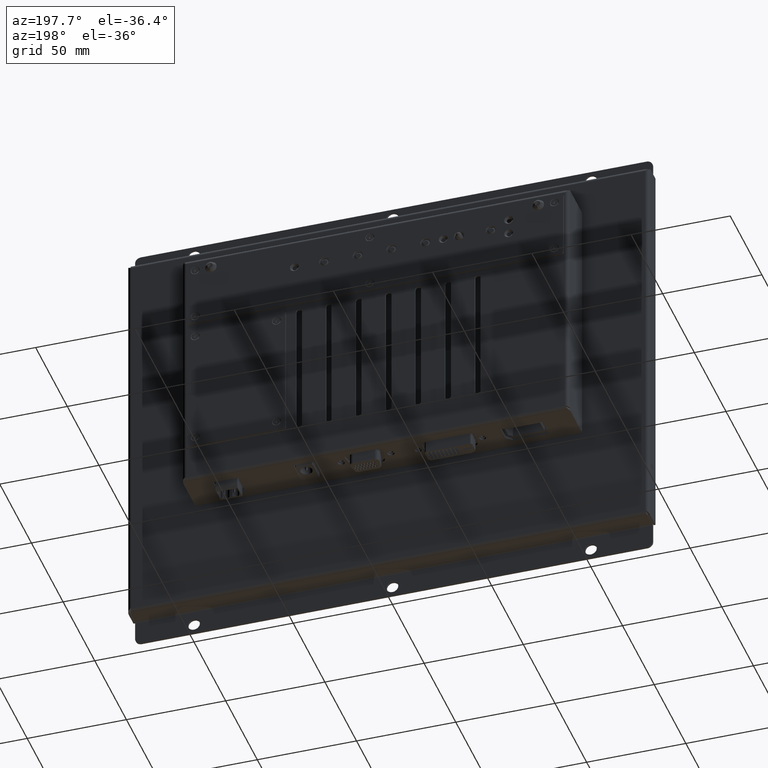
[diagram: clean part render]
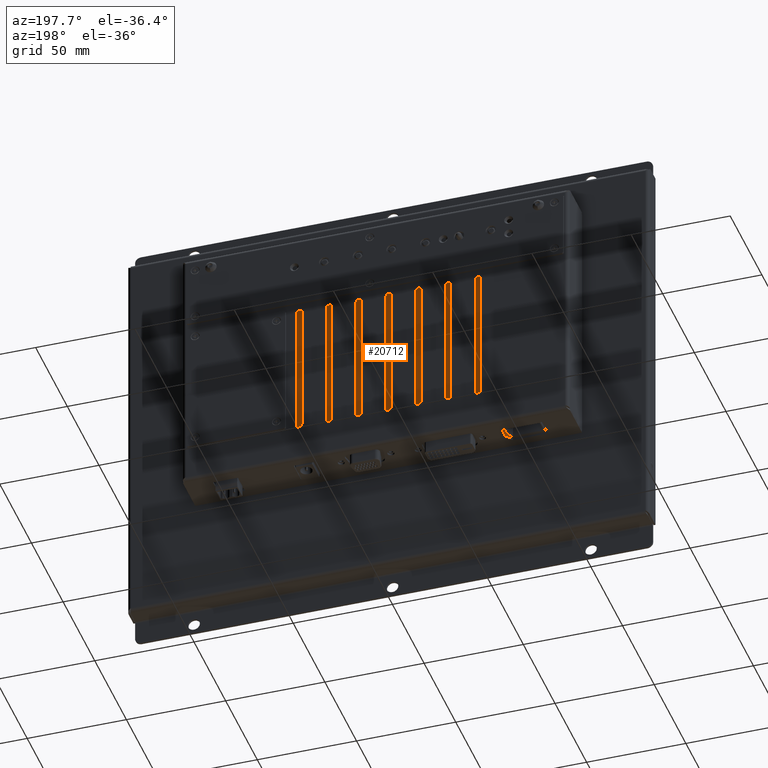
[diagram: same view with one face highlighted and labeled with its STEP entity id]
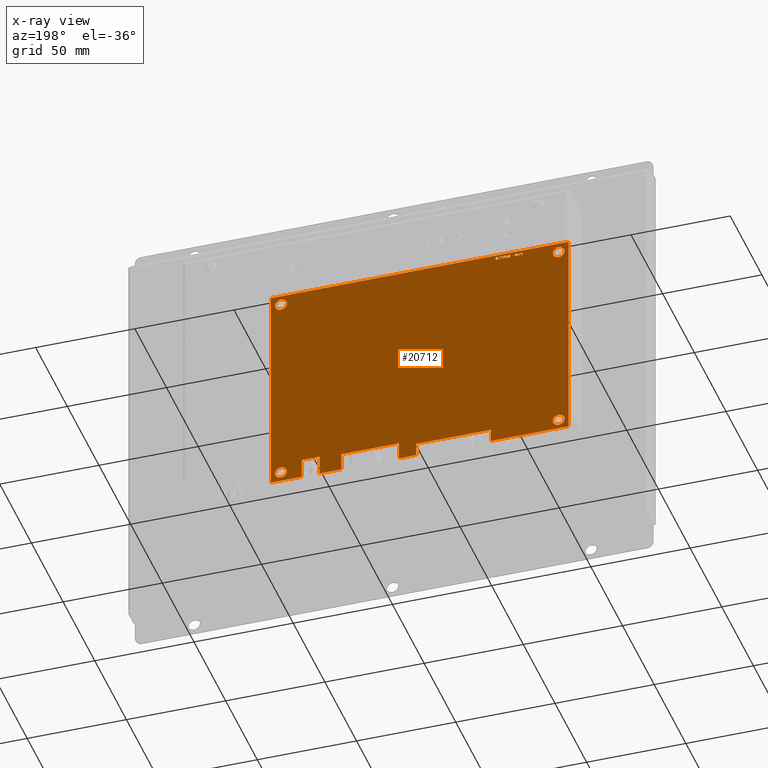
[diagram: x-ray of the same camera — body ghosted, the highlighted face saturated]
A machine part, auxiliary view. The second image highlights one B-rep face of the part: STEP entity #20712.
The next image is the same camera in x-ray: the body ghosted, the highlighted face saturated — about 0% of this face is hidden behind the body in this view.
In plain terms, the highlighted planar face has unit normal (-0, 1, 0).
Its self-contained STEP definition (entity closure, byte-faithful):
#360=B_SPLINE_CURVE_WITH_KNOTS('',2,(#31289,#31290,#31291,#31292),
 .UNSPECIFIED.,.F.,.F.,(3,1,3),(0.,1.,2.),.UNSPECIFIED.);
#361=B_SPLINE_CURVE_WITH_KNOTS('',2,(#31294,#31295,#31296,#31297),
 .UNSPECIFIED.,.F.,.F.,(3,1,3),(0.,1.,2.),.UNSPECIFIED.);
#362=B_SPLINE_CURVE_WITH_KNOTS('',2,(#31299,#31300,#31301,#31302),
 .UNSPECIFIED.,.F.,.F.,(3,1,3),(0.,1.,2.),.UNSPECIFIED.);
#363=B_SPLINE_CURVE_WITH_KNOTS('',2,(#31322,#31323,#31324,#31325),
 .UNSPECIFIED.,.F.,.F.,(3,1,3),(0.,1.,2.),.UNSPECIFIED.);
#364=B_SPLINE_CURVE_WITH_KNOTS('',2,(#31327,#31328,#31329,#31330),
 .UNSPECIFIED.,.F.,.F.,(3,1,3),(0.,1.,2.),.UNSPECIFIED.);
#365=B_SPLINE_CURVE_WITH_KNOTS('',2,(#31332,#31333,#31334,#31335),
 .UNSPECIFIED.,.F.,.F.,(3,1,3),(0.,1.,2.),.UNSPECIFIED.);
#366=B_SPLINE_CURVE_WITH_KNOTS('',2,(#31337,#31338,#31339,#31340),
 .UNSPECIFIED.,.F.,.F.,(3,1,3),(0.,1.,2.),.UNSPECIFIED.);
#367=B_SPLINE_CURVE_WITH_KNOTS('',2,(#31342,#31343,#31344,#31345),
 .UNSPECIFIED.,.F.,.F.,(3,1,3),(0.,1.,2.),.UNSPECIFIED.);
#368=B_SPLINE_CURVE_WITH_KNOTS('',2,(#31347,#31348,#31349,#31350),
 .UNSPECIFIED.,.F.,.F.,(3,1,3),(0.,1.,2.),.UNSPECIFIED.);
#369=B_SPLINE_CURVE_WITH_KNOTS('',2,(#31352,#31353,#31354,#31355),
 .UNSPECIFIED.,.F.,.F.,(3,1,3),(0.,1.,2.),.UNSPECIFIED.);
#370=B_SPLINE_CURVE_WITH_KNOTS('',2,(#31357,#31358,#31359,#31360),
 .UNSPECIFIED.,.F.,.F.,(3,1,3),(0.,1.,2.),.UNSPECIFIED.);
#371=B_SPLINE_CURVE_WITH_KNOTS('',2,(#31362,#31363,#31364,#31365),
 .UNSPECIFIED.,.F.,.F.,(3,1,3),(0.,1.,2.),.UNSPECIFIED.);
#372=B_SPLINE_CURVE_WITH_KNOTS('',2,(#31367,#31368,#31369,#31370),
 .UNSPECIFIED.,.F.,.F.,(3,1,3),(0.,1.,2.),.UNSPECIFIED.);
#373=B_SPLINE_CURVE_WITH_KNOTS('',2,(#31372,#31373,#31374,#31375),
 .UNSPECIFIED.,.F.,.F.,(3,1,3),(0.,1.,2.),.UNSPECIFIED.);
#374=B_SPLINE_CURVE_WITH_KNOTS('',2,(#31377,#31378,#31379,#31380),
 .UNSPECIFIED.,.F.,.F.,(3,1,3),(0.,1.,2.),.UNSPECIFIED.);
#375=B_SPLINE_CURVE_WITH_KNOTS('',2,(#31384,#31385,#31386,#31387),
 .UNSPECIFIED.,.F.,.F.,(3,1,3),(0.,1.,2.),.UNSPECIFIED.);
#376=B_SPLINE_CURVE_WITH_KNOTS('',2,(#31389,#31390,#31391,#31392),
 .UNSPECIFIED.,.F.,.F.,(3,1,3),(0.,1.,2.),.UNSPECIFIED.);
#377=B_SPLINE_CURVE_WITH_KNOTS('',2,(#31394,#31395,#31396,#31397),
 .UNSPECIFIED.,.F.,.F.,(3,1,3),(0.,1.,2.),.UNSPECIFIED.);
#378=B_SPLINE_CURVE_WITH_KNOTS('',2,(#31399,#31400,#31401,#31402),
 .UNSPECIFIED.,.F.,.F.,(3,1,3),(0.,1.,2.),.UNSPECIFIED.);
#379=B_SPLINE_CURVE_WITH_KNOTS('',2,(#31408,#31409,#31410,#31411),
 .UNSPECIFIED.,.F.,.F.,(3,1,3),(0.,1.,2.),.UNSPECIFIED.);
#380=B_SPLINE_CURVE_WITH_KNOTS('',2,(#31413,#31414,#31415,#31416),
 .UNSPECIFIED.,.F.,.F.,(3,1,3),(0.,1.,2.),.UNSPECIFIED.);
#381=B_SPLINE_CURVE_WITH_KNOTS('',2,(#31418,#31419,#31420,#31421),
 .UNSPECIFIED.,.F.,.F.,(3,1,3),(0.,1.,2.),.UNSPECIFIED.);
#382=B_SPLINE_CURVE_WITH_KNOTS('',2,(#31423,#31424,#31425,#31426),
 .UNSPECIFIED.,.F.,.F.,(3,1,3),(0.,1.,2.),.UNSPECIFIED.);
#383=B_SPLINE_CURVE_WITH_KNOTS('',2,(#31428,#31429,#31430,#31431),
 .UNSPECIFIED.,.F.,.F.,(3,1,3),(0.,1.,2.),.UNSPECIFIED.);
#384=B_SPLINE_CURVE_WITH_KNOTS('',2,(#31433,#31434,#31435,#31436),
 .UNSPECIFIED.,.F.,.F.,(3,1,3),(0.,1.,2.),.UNSPECIFIED.);
#385=B_SPLINE_CURVE_WITH_KNOTS('',2,(#31438,#31439,#31440,#31441),
 .UNSPECIFIED.,.F.,.F.,(3,1,3),(0.,1.,2.),.UNSPECIFIED.);
#386=B_SPLINE_CURVE_WITH_KNOTS('',2,(#31443,#31444,#31445,#31446),
 .UNSPECIFIED.,.F.,.F.,(3,1,3),(0.,1.,2.),.UNSPECIFIED.);
#387=B_SPLINE_CURVE_WITH_KNOTS('',2,(#31452,#31453,#31454,#31455),
 .UNSPECIFIED.,.F.,.F.,(3,1,3),(0.,1.,2.),.UNSPECIFIED.);
#388=B_SPLINE_CURVE_WITH_KNOTS('',2,(#31457,#31458,#31459,#31460),
 .UNSPECIFIED.,.F.,.F.,(3,1,3),(0.,1.,2.),.UNSPECIFIED.);
#389=B_SPLINE_CURVE_WITH_KNOTS('',2,(#31462,#31463,#31464,#31465),
 .UNSPECIFIED.,.F.,.F.,(3,1,3),(0.,1.,2.),.UNSPECIFIED.);
#390=B_SPLINE_CURVE_WITH_KNOTS('',2,(#31466,#31467,#31468,#31469),
 .UNSPECIFIED.,.F.,.F.,(3,1,3),(0.,1.,2.),.UNSPECIFIED.);
#391=B_SPLINE_CURVE_WITH_KNOTS('',2,(#31472,#31473,#31474,#31475),
 .UNSPECIFIED.,.F.,.F.,(3,1,3),(0.,1.,2.),.UNSPECIFIED.);
#392=B_SPLINE_CURVE_WITH_KNOTS('',2,(#31477,#31478,#31479,#31480),
 .UNSPECIFIED.,.F.,.F.,(3,1,3),(0.,1.,2.),.UNSPECIFIED.);
#393=B_SPLINE_CURVE_WITH_KNOTS('',2,(#31482,#31483,#31484,#31485),
 .UNSPECIFIED.,.F.,.F.,(3,1,3),(0.,1.,2.),.UNSPECIFIED.);
#394=B_SPLINE_CURVE_WITH_KNOTS('',2,(#31486,#31487,#31488,#31489),
 .UNSPECIFIED.,.F.,.F.,(3,1,3),(0.,1.,2.),.UNSPECIFIED.);
#395=B_SPLINE_CURVE_WITH_KNOTS('',2,(#31492,#31493,#31494,#31495),
 .UNSPECIFIED.,.F.,.F.,(3,1,3),(0.,1.,2.),.UNSPECIFIED.);
#396=B_SPLINE_CURVE_WITH_KNOTS('',2,(#31497,#31498,#31499,#31500),
 .UNSPECIFIED.,.F.,.F.,(3,1,3),(0.,1.,2.),.UNSPECIFIED.);
#397=B_SPLINE_CURVE_WITH_KNOTS('',2,(#31502,#31503,#31504,#31505),
 .UNSPECIFIED.,.F.,.F.,(3,1,3),(0.,1.,2.),.UNSPECIFIED.);
#398=B_SPLINE_CURVE_WITH_KNOTS('',2,(#31507,#31508,#31509,#31510),
 .UNSPECIFIED.,.F.,.F.,(3,1,3),(0.,1.,2.),.UNSPECIFIED.);
#399=B_SPLINE_CURVE_WITH_KNOTS('',2,(#31552,#31553,#31554,#31555),
 .UNSPECIFIED.,.F.,.F.,(3,1,3),(0.,1.,2.),.UNSPECIFIED.);
#400=B_SPLINE_CURVE_WITH_KNOTS('',2,(#31557,#31558,#31559,#31560),
 .UNSPECIFIED.,.F.,.F.,(3,1,3),(0.,1.,2.),.UNSPECIFIED.);
#401=B_SPLINE_CURVE_WITH_KNOTS('',2,(#31566,#31567,#31568,#31569),
 .UNSPECIFIED.,.F.,.F.,(3,1,3),(0.,1.,2.),.UNSPECIFIED.);
#402=B_SPLINE_CURVE_WITH_KNOTS('',2,(#31571,#31572,#31573,#31574),
 .UNSPECIFIED.,.F.,.F.,(3,1,3),(0.,1.,2.),.UNSPECIFIED.);
#403=B_SPLINE_CURVE_WITH_KNOTS('',2,(#31576,#31577,#31578,#31579),
 .UNSPECIFIED.,.F.,.F.,(3,1,3),(0.,1.,2.),.UNSPECIFIED.);
#404=B_SPLINE_CURVE_WITH_KNOTS('',2,(#31581,#31582,#31583,#31584),
 .UNSPECIFIED.,.F.,.F.,(3,1,3),(0.,1.,2.),.UNSPECIFIED.);
#405=B_SPLINE_CURVE_WITH_KNOTS('',2,(#31586,#31587,#31588,#31589),
 .UNSPECIFIED.,.F.,.F.,(3,1,3),(0.,1.,2.),.UNSPECIFIED.);
#406=B_SPLINE_CURVE_WITH_KNOTS('',2,(#31591,#31592,#31593,#31594),
 .UNSPECIFIED.,.F.,.F.,(3,1,3),(0.,1.,2.),.UNSPECIFIED.);
#407=B_SPLINE_CURVE_WITH_KNOTS('',2,(#31599,#31600,#31601,#31602),
 .UNSPECIFIED.,.F.,.F.,(3,1,3),(0.,1.,2.),.UNSPECIFIED.);
#408=B_SPLINE_CURVE_WITH_KNOTS('',2,(#31605,#31606,#31607,#31608),
 .UNSPECIFIED.,.F.,.F.,(3,1,3),(0.,1.,2.),.UNSPECIFIED.);
#409=B_SPLINE_CURVE_WITH_KNOTS('',2,(#31612,#31613,#31614,#31615),
 .UNSPECIFIED.,.F.,.F.,(3,1,3),(0.,1.,2.),.UNSPECIFIED.);
#410=B_SPLINE_CURVE_WITH_KNOTS('',2,(#31617,#31618,#31619,#31620),
 .UNSPECIFIED.,.F.,.F.,(3,1,3),(0.,1.,2.),.UNSPECIFIED.);
#411=B_SPLINE_CURVE_WITH_KNOTS('',2,(#31622,#31623,#31624,#31625),
 .UNSPECIFIED.,.F.,.F.,(3,1,3),(0.,1.,2.),.UNSPECIFIED.);
#412=B_SPLINE_CURVE_WITH_KNOTS('',2,(#31633,#31634,#31635,#31636),
 .UNSPECIFIED.,.F.,.F.,(3,1,3),(0.,1.,2.),.UNSPECIFIED.);
#413=B_SPLINE_CURVE_WITH_KNOTS('',2,(#31637,#31638,#31639,#31640),
 .UNSPECIFIED.,.F.,.F.,(3,1,3),(0.,1.,2.),.UNSPECIFIED.);
#414=B_SPLINE_CURVE_WITH_KNOTS('',2,(#31643,#31644,#31645,#31646),
 .UNSPECIFIED.,.F.,.F.,(3,1,3),(0.,1.,2.),.UNSPECIFIED.);
#415=B_SPLINE_CURVE_WITH_KNOTS('',2,(#31648,#31649,#31650,#31651),
 .UNSPECIFIED.,.F.,.F.,(3,1,3),(0.,1.,2.),.UNSPECIFIED.);
#416=B_SPLINE_CURVE_WITH_KNOTS('',2,(#31653,#31654,#31655,#31656),
 .UNSPECIFIED.,.F.,.F.,(3,1,3),(0.,1.,2.),.UNSPECIFIED.);
#417=B_SPLINE_CURVE_WITH_KNOTS('',2,(#31662,#31663,#31664,#31665),
 .UNSPECIFIED.,.F.,.F.,(3,1,3),(0.,1.,2.),.UNSPECIFIED.);
#418=B_SPLINE_CURVE_WITH_KNOTS('',2,(#31667,#31668,#31669,#31670),
 .UNSPECIFIED.,.F.,.F.,(3,1,3),(0.,1.,2.),.UNSPECIFIED.);
#419=B_SPLINE_CURVE_WITH_KNOTS('',2,(#31672,#31673,#31674,#31675),
 .UNSPECIFIED.,.F.,.F.,(3,1,3),(0.,1.,2.),.UNSPECIFIED.);
#420=B_SPLINE_CURVE_WITH_KNOTS('',2,(#31677,#31678,#31679,#31680),
 .UNSPECIFIED.,.F.,.F.,(3,1,3),(0.,1.,2.),.UNSPECIFIED.);
#421=B_SPLINE_CURVE_WITH_KNOTS('',2,(#31682,#31683,#31684,#31685),
 .UNSPECIFIED.,.F.,.F.,(3,1,3),(0.,1.,2.),.UNSPECIFIED.);
#422=B_SPLINE_CURVE_WITH_KNOTS('',2,(#31687,#31688,#31689,#31690),
 .UNSPECIFIED.,.F.,.F.,(3,1,3),(0.,1.,2.),.UNSPECIFIED.);
#423=B_SPLINE_CURVE_WITH_KNOTS('',2,(#31692,#31693,#31694,#31695),
 .UNSPECIFIED.,.F.,.F.,(3,1,3),(0.,1.,2.),.UNSPECIFIED.);
#424=B_SPLINE_CURVE_WITH_KNOTS('',2,(#31701,#31702,#31703,#31704),
 .UNSPECIFIED.,.F.,.F.,(3,1,3),(0.,1.,2.),.UNSPECIFIED.);
#425=B_SPLINE_CURVE_WITH_KNOTS('',2,(#31705,#31706,#31707,#31708),
 .UNSPECIFIED.,.F.,.F.,(3,1,3),(0.,1.,2.),.UNSPECIFIED.);
#859=FACE_BOUND('',#7002,.T.);
#860=FACE_BOUND('',#7003,.T.);
#861=FACE_BOUND('',#7004,.T.);
#862=FACE_BOUND('',#7005,.T.);
#863=FACE_BOUND('',#7006,.T.);
#864=FACE_BOUND('',#7007,.T.);
#865=FACE_BOUND('',#7008,.T.);
#866=FACE_BOUND('',#7009,.T.);
#867=FACE_BOUND('',#7010,.T.);
#868=FACE_BOUND('',#7011,.T.);
#869=FACE_BOUND('',#7012,.T.);
#870=FACE_BOUND('',#7013,.T.);
#871=FACE_BOUND('',#7014,.T.);
#872=FACE_BOUND('',#7015,.T.);
#873=FACE_BOUND('',#7016,.T.);
#1290=PLANE('',#22520);
#2159=LINE('',#30929,#3914);
#2161=LINE('',#30932,#3916);
#2165=LINE('',#30946,#3920);
#2193=LINE('',#31050,#3948);
#2196=LINE('',#31057,#3951);
#2197=LINE('',#31059,#3952);
#2246=LINE('',#31231,#4001);
#2249=LINE('',#31237,#4004);
#2252=LINE('',#31242,#4007);
#2254=LINE('',#31246,#4009);
#2255=LINE('',#31247,#4010);
#2256=LINE('',#31249,#4011);
#2257=LINE('',#31251,#4012);
#2258=LINE('',#31253,#4013);
#2259=LINE('',#31255,#4014);
#2260=LINE('',#31256,#4015);
#2261=LINE('',#31265,#4016);
#2262=LINE('',#31267,#4017);
#2263=LINE('',#31269,#4018);
#2264=LINE('',#31271,#4019);
#2265=LINE('',#31273,#4020);
#2266=LINE('',#31275,#4021);
#2267=LINE('',#31277,#4022);
#2268=LINE('',#31279,#4023);
#2269=LINE('',#31281,#4024);
#2270=LINE('',#31283,#4025);
#2271=LINE('',#31285,#4026);
#2272=LINE('',#31286,#4027);
#2273=LINE('',#31304,#4028);
#2274=LINE('',#31306,#4029);
#2275=LINE('',#31308,#4030);
#2276=LINE('',#31310,#4031);
#2277=LINE('',#31312,#4032);
#2278=LINE('',#31314,#4033);
#2279=LINE('',#31316,#4034);
#2280=LINE('',#31317,#4035);
#2281=LINE('',#31320,#4036);
#2282=LINE('',#31381,#4037);
#2283=LINE('',#31404,#4038);
#2284=LINE('',#31406,#4039);
#2285=LINE('',#31448,#4040);
#2286=LINE('',#31450,#4041);
#2287=LINE('',#31512,#4042);
#2288=LINE('',#31514,#4043);
#2289=LINE('',#31515,#4044);
#2290=LINE('',#31518,#4045);
#2291=LINE('',#31520,#4046);
#2292=LINE('',#31522,#4047);
#2293=LINE('',#31523,#4048);
#2294=LINE('',#31526,#4049);
#2295=LINE('',#31528,#4050);
#2296=LINE('',#31530,#4051);
#2297=LINE('',#31532,#4052);
#2298=LINE('',#31534,#4053);
#2299=LINE('',#31536,#4054);
#2300=LINE('',#31538,#4055);
#2301=LINE('',#31540,#4056);
#2302=LINE('',#31542,#4057);
#2303=LINE('',#31544,#4058);
#2304=LINE('',#31546,#4059);
#2305=LINE('',#31548,#4060);
#2306=LINE('',#31549,#4061);
#2307=LINE('',#31562,#4062);
#2308=LINE('',#31564,#4063);
#2309=LINE('',#31596,#4064);
#2310=LINE('',#31598,#4065);
#2311=LINE('',#31610,#4066);
#2312=LINE('',#31627,#4067);
#2313=LINE('',#31629,#4068);
#2314=LINE('',#31631,#4069);
#2315=LINE('',#31658,#4070);
#2316=LINE('',#31660,#4071);
#2317=LINE('',#31697,#4072);
#2318=LINE('',#31699,#4073);
#3914=VECTOR('',#25218,10.);
#3916=VECTOR('',#25222,10.);
#3920=VECTOR('',#25240,10.);
#3948=VECTOR('',#25350,10.);
#3951=VECTOR('',#25359,10.);
#3952=VECTOR('',#25362,10.);
#4001=VECTOR('',#25563,10.);
#4004=VECTOR('',#25568,10.);
#4007=VECTOR('',#25573,10.);
#4009=VECTOR('',#25579,10.);
#4010=VECTOR('',#25580,10.);
#4011=VECTOR('',#25581,10.);
#4012=VECTOR('',#25582,10.);
#4013=VECTOR('',#25583,10.);
#4014=VECTOR('',#25584,10.);
#4015=VECTOR('',#25585,10.);
#4016=VECTOR('',#25592,10.);
#4017=VECTOR('',#25593,10.);
#4018=VECTOR('',#25594,10.);
#4019=VECTOR('',#25595,10.);
#4020=VECTOR('',#25596,10.);
#4021=VECTOR('',#25597,10.);
#4022=VECTOR('',#25598,10.);
#4023=VECTOR('',#25599,10.);
#4024=VECTOR('',#25600,10.);
#4025=VECTOR('',#25601,10.);
#4026=VECTOR('',#25602,10.);
#4027=VECTOR('',#25603,10.);
#4028=VECTOR('',#25604,10.);
#4029=VECTOR('',#25605,10.);
#4030=VECTOR('',#25606,10.);
#4031=VECTOR('',#25607,10.);
#4032=VECTOR('',#25608,10.);
#4033=VECTOR('',#25609,10.);
#4034=VECTOR('',#25610,10.);
#4035=VECTOR('',#25611,10.);
#4036=VECTOR('',#25612,10.);
#4037=VECTOR('',#25613,10.);
#4038=VECTOR('',#25614,10.);
#4039=VECTOR('',#25615,10.);
#4040=VECTOR('',#25616,10.);
#4041=VECTOR('',#25617,10.);
#4042=VECTOR('',#25618,10.);
#4043=VECTOR('',#25619,10.);
#4044=VECTOR('',#25620,10.);
#4045=VECTOR('',#25621,10.);
#4046=VECTOR('',#25622,10.);
#4047=VECTOR('',#25623,10.);
#4048=VECTOR('',#25624,10.);
#4049=VECTOR('',#25625,10.);
#4050=VECTOR('',#25626,10.);
#4051=VECTOR('',#25627,10.);
#4052=VECTOR('',#25628,10.);
#4053=VECTOR('',#25629,10.);
#4054=VECTOR('',#25630,10.);
#4055=VECTOR('',#25631,10.);
#4056=VECTOR('',#25632,10.);
#4057=VECTOR('',#25633,10.);
#4058=VECTOR('',#25634,10.);
#4059=VECTOR('',#25635,10.);
#4060=VECTOR('',#25636,10.);
#4061=VECTOR('',#25637,10.);
#4062=VECTOR('',#25638,10.);
#4063=VECTOR('',#25639,10.);
#4064=VECTOR('',#25640,10.);
#4065=VECTOR('',#25641,10.);
#4066=VECTOR('',#25642,10.);
#4067=VECTOR('',#25643,10.);
#4068=VECTOR('',#25644,10.);
#4069=VECTOR('',#25645,10.);
#4070=VECTOR('',#25646,10.);
#4071=VECTOR('',#25647,10.);
#4072=VECTOR('',#25648,10.);
#4073=VECTOR('',#25649,10.);
#5792=FACE_OUTER_BOUND('',#7001,.T.);
#7001=EDGE_LOOP('',(#15491,#15492,#15493,#15494,#15495,#15496,#15497,#15498,
#15499,#15500,#15501,#15502,#15503,#15504,#15505,#15506,#15507,#15508));
#7002=EDGE_LOOP('',(#15509));
#7003=EDGE_LOOP('',(#15510));
#7004=EDGE_LOOP('',(#15511));
#7005=EDGE_LOOP('',(#15512,#15513,#15514,#15515,#15516,#15517,#15518,#15519,
#15520,#15521,#15522,#15523));
#7006=EDGE_LOOP('',(#15524,#15525,#15526,#15527,#15528,#15529,#15530,#15531,
#15532,#15533,#15534));
#7007=EDGE_LOOP('',(#15535,#15536,#15537,#15538,#15539,#15540,#15541,#15542,
#15543,#15544,#15545,#15546,#15547,#15548));
#7008=EDGE_LOOP('',(#15549,#15550,#15551,#15552,#15553,#15554,#15555,#15556,
#15557,#15558,#15559,#15560,#15561,#15562,#15563,#15564,#15565,#15566,#15567,
#15568));
#7009=EDGE_LOOP('',(#15569,#15570,#15571,#15572));
#7010=EDGE_LOOP('',(#15573,#15574,#15575,#15576,#15577,#15578,#15579));
#7011=EDGE_LOOP('',(#15580,#15581,#15582,#15583));
#7012=EDGE_LOOP('',(#15584,#15585,#15586,#15587,#15588,#15589,#15590,#15591,
#15592,#15593,#15594,#15595,#15596));
#7013=EDGE_LOOP('',(#15597,#15598,#15599,#15600,#15601,#15602,#15603,#15604,
#15605,#15606,#15607,#15608,#15609));
#7014=EDGE_LOOP('',(#15610,#15611,#15612,#15613,#15614,#15615,#15616,#15617,
#15618,#15619));
#7015=EDGE_LOOP('',(#15620,#15621,#15622,#15623,#15624,#15625,#15626,#15627,
#15628,#15629,#15630,#15631,#15632,#15633,#15634,#15635));
#7016=EDGE_LOOP('',(#15636));
#8257=CIRCLE('',#22382,0.5);
#8259=CIRCLE('',#22386,0.5);
#8322=CIRCLE('',#22521,3.);
#8323=CIRCLE('',#22522,3.);
#8324=CIRCLE('',#22523,3.);
#8325=CIRCLE('',#22524,3.);
#9407=VERTEX_POINT('',#30910);
#9408=VERTEX_POINT('',#30911);
#9411=VERTEX_POINT('',#30922);
#9412=VERTEX_POINT('',#30923);
#9413=VERTEX_POINT('',#30928);
#9416=VERTEX_POINT('',#30944);
#9438=VERTEX_POINT('',#31017);
#9439=VERTEX_POINT('',#31018);
#9450=VERTEX_POINT('',#31047);
#9451=VERTEX_POINT('',#31049);
#9459=VERTEX_POINT('',#31077);
#9460=VERTEX_POINT('',#31078);
#9499=VERTEX_POINT('',#31230);
#9501=VERTEX_POINT('',#31236);
#9503=VERTEX_POINT('',#31248);
#9504=VERTEX_POINT('',#31250);
#9505=VERTEX_POINT('',#31252);
#9506=VERTEX_POINT('',#31254);
#9507=VERTEX_POINT('',#31257);
#9508=VERTEX_POINT('',#31259);
#9509=VERTEX_POINT('',#31261);
#9510=VERTEX_POINT('',#31263);
#9511=VERTEX_POINT('',#31264);
#9512=VERTEX_POINT('',#31266);
#9513=VERTEX_POINT('',#31268);
#9514=VERTEX_POINT('',#31270);
#9515=VERTEX_POINT('',#31272);
#9516=VERTEX_POINT('',#31274);
#9517=VERTEX_POINT('',#31276);
#9518=VERTEX_POINT('',#31278);
#9519=VERTEX_POINT('',#31280);
#9520=VERTEX_POINT('',#31282);
#9521=VERTEX_POINT('',#31284);
#9522=VERTEX_POINT('',#31287);
#9523=VERTEX_POINT('',#31288);
#9524=VERTEX_POINT('',#31293);
#9525=VERTEX_POINT('',#31298);
#9526=VERTEX_POINT('',#31303);
#9527=VERTEX_POINT('',#31305);
#9528=VERTEX_POINT('',#31307);
#9529=VERTEX_POINT('',#31309);
#9530=VERTEX_POINT('',#31311);
#9531=VERTEX_POINT('',#31313);
#9532=VERTEX_POINT('',#31315);
#9533=VERTEX_POINT('',#31318);
#9534=VERTEX_POINT('',#31319);
#9535=VERTEX_POINT('',#31321);
#9536=VERTEX_POINT('',#31326);
#9537=VERTEX_POINT('',#31331);
#9538=VERTEX_POINT('',#31336);
#9539=VERTEX_POINT('',#31341);
#9540=VERTEX_POINT('',#31346);
#9541=VERTEX_POINT('',#31351);
#9542=VERTEX_POINT('',#31356);
#9543=VERTEX_POINT('',#31361);
#9544=VERTEX_POINT('',#31366);
#9545=VERTEX_POINT('',#31371);
#9546=VERTEX_POINT('',#31376);
#9547=VERTEX_POINT('',#31382);
#9548=VERTEX_POINT('',#31383);
#9549=VERTEX_POINT('',#31388);
#9550=VERTEX_POINT('',#31393);
#9551=VERTEX_POINT('',#31398);
#9552=VERTEX_POINT('',#31403);
#9553=VERTEX_POINT('',#31405);
#9554=VERTEX_POINT('',#31407);
#9555=VERTEX_POINT('',#31412);
#9556=VERTEX_POINT('',#31417);
#9557=VERTEX_POINT('',#31422);
#9558=VERTEX_POINT('',#31427);
#9559=VERTEX_POINT('',#31432);
#9560=VERTEX_POINT('',#31437);
#9561=VERTEX_POINT('',#31442);
#9562=VERTEX_POINT('',#31447);
#9563=VERTEX_POINT('',#31449);
#9564=VERTEX_POINT('',#31451);
#9565=VERTEX_POINT('',#31456);
#9566=VERTEX_POINT('',#31461);
#9567=VERTEX_POINT('',#31470);
#9568=VERTEX_POINT('',#31471);
#9569=VERTEX_POINT('',#31476);
#9570=VERTEX_POINT('',#31481);
#9571=VERTEX_POINT('',#31490);
#9572=VERTEX_POINT('',#31491);
#9573=VERTEX_POINT('',#31496);
#9574=VERTEX_POINT('',#31501);
#9575=VERTEX_POINT('',#31506);
#9576=VERTEX_POINT('',#31511);
#9577=VERTEX_POINT('',#31513);
#9578=VERTEX_POINT('',#31516);
#9579=VERTEX_POINT('',#31517);
#9580=VERTEX_POINT('',#31519);
#9581=VERTEX_POINT('',#31521);
#9582=VERTEX_POINT('',#31524);
#9583=VERTEX_POINT('',#31525);
#9584=VERTEX_POINT('',#31527);
#9585=VERTEX_POINT('',#31529);
#9586=VERTEX_POINT('',#31531);
#9587=VERTEX_POINT('',#31533);
#9588=VERTEX_POINT('',#31535);
#9589=VERTEX_POINT('',#31537);
#9590=VERTEX_POINT('',#31539);
#9591=VERTEX_POINT('',#31541);
#9592=VERTEX_POINT('',#31543);
#9593=VERTEX_POINT('',#31545);
#9594=VERTEX_POINT('',#31547);
#9595=VERTEX_POINT('',#31550);
#9596=VERTEX_POINT('',#31551);
#9597=VERTEX_POINT('',#31556);
#9598=VERTEX_POINT('',#31561);
#9599=VERTEX_POINT('',#31563);
#9600=VERTEX_POINT('',#31565);
#9601=VERTEX_POINT('',#31570);
#9602=VERTEX_POINT('',#31575);
#9603=VERTEX_POINT('',#31580);
#9604=VERTEX_POINT('',#31585);
#9605=VERTEX_POINT('',#31590);
#9606=VERTEX_POINT('',#31595);
#9607=VERTEX_POINT('',#31597);
#9608=VERTEX_POINT('',#31603);
#9609=VERTEX_POINT('',#31604);
#9610=VERTEX_POINT('',#31609);
#9611=VERTEX_POINT('',#31611);
#9612=VERTEX_POINT('',#31616);
#9613=VERTEX_POINT('',#31621);
#9614=VERTEX_POINT('',#31626);
#9615=VERTEX_POINT('',#31628);
#9616=VERTEX_POINT('',#31630);
#9617=VERTEX_POINT('',#31632);
#9618=VERTEX_POINT('',#31641);
#9619=VERTEX_POINT('',#31642);
#9620=VERTEX_POINT('',#31647);
#9621=VERTEX_POINT('',#31652);
#9622=VERTEX_POINT('',#31657);
#9623=VERTEX_POINT('',#31659);
#9624=VERTEX_POINT('',#31661);
#9625=VERTEX_POINT('',#31666);
#9626=VERTEX_POINT('',#31671);
#9627=VERTEX_POINT('',#31676);
#9628=VERTEX_POINT('',#31681);
#9629=VERTEX_POINT('',#31686);
#9630=VERTEX_POINT('',#31691);
#9631=VERTEX_POINT('',#31696);
#9632=VERTEX_POINT('',#31698);
#9633=VERTEX_POINT('',#31700);
#9634=VERTEX_POINT('',#31709);
#11588=EDGE_CURVE('',#9407,#9408,#8257,.F.);
#11594=EDGE_CURVE('',#9411,#9412,#8259,.F.);
#11597=EDGE_CURVE('',#9413,#9408,#2159,.T.);
#11599=EDGE_CURVE('',#9407,#9412,#2161,.T.);
#11605=EDGE_CURVE('',#9411,#9416,#2165,.T.);
#11656=EDGE_CURVE('',#9451,#9450,#2193,.T.);
#11660=EDGE_CURVE('',#9439,#9451,#2196,.T.);
#11661=EDGE_CURVE('',#9450,#9438,#2197,.T.);
#11746=EDGE_CURVE('',#9460,#9499,#2246,.T.);
#11749=EDGE_CURVE('',#9499,#9501,#2249,.T.);
#11752=EDGE_CURVE('',#9501,#9459,#2252,.T.);
#11754=EDGE_CURVE('',#9416,#9439,#2254,.T.);
#11755=EDGE_CURVE('',#9438,#9460,#2255,.T.);
#11756=EDGE_CURVE('',#9459,#9503,#2256,.T.);
#11757=EDGE_CURVE('',#9503,#9504,#2257,.T.);
#11758=EDGE_CURVE('',#9504,#9505,#2258,.T.);
#11759=EDGE_CURVE('',#9505,#9506,#2259,.T.);
#11760=EDGE_CURVE('',#9506,#9413,#2260,.T.);
#11761=EDGE_CURVE('',#9507,#9507,#8322,.T.);
#11762=EDGE_CURVE('',#9508,#9508,#8323,.T.);
#11763=EDGE_CURVE('',#9509,#9509,#8324,.T.);
#11764=EDGE_CURVE('',#9510,#9511,#2261,.T.);
#11765=EDGE_CURVE('',#9511,#9512,#2262,.T.);
#11766=EDGE_CURVE('',#9512,#9513,#2263,.T.);
#11767=EDGE_CURVE('',#9513,#9514,#2264,.T.);
#11768=EDGE_CURVE('',#9514,#9515,#2265,.T.);
#11769=EDGE_CURVE('',#9515,#9516,#2266,.T.);
#11770=EDGE_CURVE('',#9516,#9517,#2267,.T.);
#11771=EDGE_CURVE('',#9517,#9518,#2268,.T.);
#11772=EDGE_CURVE('',#9518,#9519,#2269,.T.);
#11773=EDGE_CURVE('',#9519,#9520,#2270,.T.);
#11774=EDGE_CURVE('',#9520,#9521,#2271,.T.);
#11775=EDGE_CURVE('',#9521,#9510,#2272,.T.);
#11776=EDGE_CURVE('',#9522,#9523,#360,.T.);
#11777=EDGE_CURVE('',#9523,#9524,#361,.T.);
#11778=EDGE_CURVE('',#9524,#9525,#362,.T.);
#11779=EDGE_CURVE('',#9525,#9526,#2273,.T.);
#11780=EDGE_CURVE('',#9526,#9527,#2274,.T.);
#11781=EDGE_CURVE('',#9527,#9528,#2275,.T.);
#11782=EDGE_CURVE('',#9528,#9529,#2276,.T.);
#11783=EDGE_CURVE('',#9529,#9530,#2277,.T.);
#11784=EDGE_CURVE('',#9530,#9531,#2278,.T.);
#11785=EDGE_CURVE('',#9531,#9532,#2279,.T.);
#11786=EDGE_CURVE('',#9532,#9522,#2280,.T.);
#11787=EDGE_CURVE('',#9533,#9534,#2281,.T.);
#11788=EDGE_CURVE('',#9534,#9535,#363,.T.);
#11789=EDGE_CURVE('',#9535,#9536,#364,.T.);
#11790=EDGE_CURVE('',#9536,#9537,#365,.T.);
#11791=EDGE_CURVE('',#9537,#9538,#366,.T.);
#11792=EDGE_CURVE('',#9538,#9539,#367,.T.);
#11793=EDGE_CURVE('',#9539,#9540,#368,.T.);
#11794=EDGE_CURVE('',#9540,#9541,#369,.T.);
#11795=EDGE_CURVE('',#9541,#9542,#370,.T.);
#11796=EDGE_CURVE('',#9542,#9543,#371,.T.);
#11797=EDGE_CURVE('',#9543,#9544,#372,.T.);
#11798=EDGE_CURVE('',#9544,#9545,#373,.T.);
#11799=EDGE_CURVE('',#9545,#9546,#374,.T.);
#11800=EDGE_CURVE('',#9546,#9533,#2282,.T.);
#11801=EDGE_CURVE('',#9547,#9548,#375,.T.);
#11802=EDGE_CURVE('',#9548,#9549,#376,.T.);
#11803=EDGE_CURVE('',#9549,#9550,#377,.T.);
#11804=EDGE_CURVE('',#9550,#9551,#378,.T.);
#11805=EDGE_CURVE('',#9551,#9552,#2283,.T.);
#11806=EDGE_CURVE('',#9552,#9553,#2284,.T.);
#11807=EDGE_CURVE('',#9553,#9554,#379,.T.);
#11808=EDGE_CURVE('',#9554,#9555,#380,.T.);
#11809=EDGE_CURVE('',#9555,#9556,#381,.T.);
#11810=EDGE_CURVE('',#9556,#9557,#382,.T.);
#11811=EDGE_CURVE('',#9557,#9558,#383,.T.);
#11812=EDGE_CURVE('',#9558,#9559,#384,.T.);
#11813=EDGE_CURVE('',#9559,#9560,#385,.T.);
#11814=EDGE_CURVE('',#9560,#9561,#386,.T.);
#11815=EDGE_CURVE('',#9561,#9562,#2285,.T.);
#11816=EDGE_CURVE('',#9562,#9563,#2286,.T.);
#11817=EDGE_CURVE('',#9563,#9564,#387,.T.);
#11818=EDGE_CURVE('',#9564,#9565,#388,.T.);
#11819=EDGE_CURVE('',#9565,#9566,#389,.T.);
#11820=EDGE_CURVE('',#9566,#9547,#390,.T.);
#11821=EDGE_CURVE('',#9567,#9568,#391,.T.);
#11822=EDGE_CURVE('',#9568,#9569,#392,.T.);
#11823=EDGE_CURVE('',#9569,#9570,#393,.T.);
#11824=EDGE_CURVE('',#9570,#9567,#394,.T.);
#11825=EDGE_CURVE('',#9571,#9572,#395,.T.);
#11826=EDGE_CURVE('',#9572,#9573,#396,.T.);
#11827=EDGE_CURVE('',#9573,#9574,#397,.T.);
#11828=EDGE_CURVE('',#9574,#9575,#398,.T.);
#11829=EDGE_CURVE('',#9575,#9576,#2287,.T.);
#11830=EDGE_CURVE('',#9576,#9577,#2288,.T.);
#11831=EDGE_CURVE('',#9577,#9571,#2289,.T.);
#11832=EDGE_CURVE('',#9578,#9579,#2290,.T.);
#11833=EDGE_CURVE('',#9579,#9580,#2291,.T.);
#11834=EDGE_CURVE('',#9580,#9581,#2292,.T.);
#11835=EDGE_CURVE('',#9581,#9578,#2293,.T.);
#11836=EDGE_CURVE('',#9582,#9583,#2294,.T.);
#11837=EDGE_CURVE('',#9583,#9584,#2295,.T.);
#11838=EDGE_CURVE('',#9584,#9585,#2296,.T.);
#11839=EDGE_CURVE('',#9585,#9586,#2297,.T.);
#11840=EDGE_CURVE('',#9586,#9587,#2298,.T.);
#11841=EDGE_CURVE('',#9587,#9588,#2299,.T.);
#11842=EDGE_CURVE('',#9588,#9589,#2300,.T.);
#11843=EDGE_CURVE('',#9589,#9590,#2301,.T.);
#11844=EDGE_CURVE('',#9590,#9591,#2302,.T.);
#11845=EDGE_CURVE('',#9591,#9592,#2303,.T.);
#11846=EDGE_CURVE('',#9592,#9593,#2304,.T.);
#11847=EDGE_CURVE('',#9593,#9594,#2305,.T.);
#11848=EDGE_CURVE('',#9594,#9582,#2306,.T.);
#11849=EDGE_CURVE('',#9595,#9596,#399,.T.);
#11850=EDGE_CURVE('',#9596,#9597,#400,.T.);
#11851=EDGE_CURVE('',#9597,#9598,#2307,.T.);
#11852=EDGE_CURVE('',#9598,#9599,#2308,.T.);
#11853=EDGE_CURVE('',#9599,#9600,#401,.T.);
#11854=EDGE_CURVE('',#9600,#9601,#402,.T.);
#11855=EDGE_CURVE('',#9601,#9602,#403,.T.);
#11856=EDGE_CURVE('',#9602,#9603,#404,.T.);
#11857=EDGE_CURVE('',#9603,#9604,#405,.T.);
#11858=EDGE_CURVE('',#9604,#9605,#406,.T.);
#11859=EDGE_CURVE('',#9605,#9606,#2309,.T.);
#11860=EDGE_CURVE('',#9606,#9607,#2310,.T.);
#11861=EDGE_CURVE('',#9607,#9595,#407,.T.);
#11862=EDGE_CURVE('',#9608,#9609,#408,.T.);
#11863=EDGE_CURVE('',#9609,#9610,#2311,.T.);
#11864=EDGE_CURVE('',#9610,#9611,#409,.T.);
#11865=EDGE_CURVE('',#9611,#9612,#410,.T.);
#11866=EDGE_CURVE('',#9612,#9613,#411,.T.);
#11867=EDGE_CURVE('',#9613,#9614,#2312,.T.);
#11868=EDGE_CURVE('',#9614,#9615,#2313,.T.);
#11869=EDGE_CURVE('',#9615,#9616,#2314,.T.);
#11870=EDGE_CURVE('',#9616,#9617,#412,.T.);
#11871=EDGE_CURVE('',#9617,#9608,#413,.T.);
#11872=EDGE_CURVE('',#9618,#9619,#414,.T.);
#11873=EDGE_CURVE('',#9619,#9620,#415,.T.);
#11874=EDGE_CURVE('',#9620,#9621,#416,.T.);
#11875=EDGE_CURVE('',#9621,#9622,#2315,.T.);
#11876=EDGE_CURVE('',#9622,#9623,#2316,.T.);
#11877=EDGE_CURVE('',#9623,#9624,#417,.T.);
#11878=EDGE_CURVE('',#9624,#9625,#418,.T.);
#11879=EDGE_CURVE('',#9625,#9626,#419,.T.);
#11880=EDGE_CURVE('',#9626,#9627,#420,.T.);
#11881=EDGE_CURVE('',#9627,#9628,#421,.T.);
#11882=EDGE_CURVE('',#9628,#9629,#422,.T.);
#11883=EDGE_CURVE('',#9629,#9630,#423,.T.);
#11884=EDGE_CURVE('',#9630,#9631,#2317,.T.);
#11885=EDGE_CURVE('',#9631,#9632,#2318,.T.);
#11886=EDGE_CURVE('',#9632,#9633,#424,.T.);
#11887=EDGE_CURVE('',#9633,#9618,#425,.T.);
#11888=EDGE_CURVE('',#9634,#9634,#8325,.T.);
#15491=ORIENTED_EDGE('',*,*,#11605,.T.);
#15492=ORIENTED_EDGE('',*,*,#11754,.T.);
#15493=ORIENTED_EDGE('',*,*,#11660,.T.);
#15494=ORIENTED_EDGE('',*,*,#11656,.T.);
#15495=ORIENTED_EDGE('',*,*,#11661,.T.);
#15496=ORIENTED_EDGE('',*,*,#11755,.T.);
#15497=ORIENTED_EDGE('',*,*,#11746,.T.);
#15498=ORIENTED_EDGE('',*,*,#11749,.T.);
#15499=ORIENTED_EDGE('',*,*,#11752,.T.);
#15500=ORIENTED_EDGE('',*,*,#11756,.T.);
#15501=ORIENTED_EDGE('',*,*,#11757,.T.);
#15502=ORIENTED_EDGE('',*,*,#11758,.T.);
#15503=ORIENTED_EDGE('',*,*,#11759,.T.);
#15504=ORIENTED_EDGE('',*,*,#11760,.T.);
#15505=ORIENTED_EDGE('',*,*,#11597,.T.);
#15506=ORIENTED_EDGE('',*,*,#11588,.F.);
#15507=ORIENTED_EDGE('',*,*,#11599,.T.);
#15508=ORIENTED_EDGE('',*,*,#11594,.F.);
#15509=ORIENTED_EDGE('',*,*,#11761,.F.);
#15510=ORIENTED_EDGE('',*,*,#11762,.T.);
#15511=ORIENTED_EDGE('',*,*,#11763,.T.);
#15512=ORIENTED_EDGE('',*,*,#11764,.T.);
#15513=ORIENTED_EDGE('',*,*,#11765,.T.);
#15514=ORIENTED_EDGE('',*,*,#11766,.T.);
#15515=ORIENTED_EDGE('',*,*,#11767,.T.);
#15516=ORIENTED_EDGE('',*,*,#11768,.T.);
#15517=ORIENTED_EDGE('',*,*,#11769,.T.);
#15518=ORIENTED_EDGE('',*,*,#11770,.T.);
#15519=ORIENTED_EDGE('',*,*,#11771,.T.);
#15520=ORIENTED_EDGE('',*,*,#11772,.T.);
#15521=ORIENTED_EDGE('',*,*,#11773,.T.);
#15522=ORIENTED_EDGE('',*,*,#11774,.T.);
#15523=ORIENTED_EDGE('',*,*,#11775,.T.);
#15524=ORIENTED_EDGE('',*,*,#11776,.T.);
#15525=ORIENTED_EDGE('',*,*,#11777,.T.);
#15526=ORIENTED_EDGE('',*,*,#11778,.T.);
#15527=ORIENTED_EDGE('',*,*,#11779,.T.);
#15528=ORIENTED_EDGE('',*,*,#11780,.T.);
#15529=ORIENTED_EDGE('',*,*,#11781,.T.);
#15530=ORIENTED_EDGE('',*,*,#11782,.T.);
#15531=ORIENTED_EDGE('',*,*,#11783,.T.);
#15532=ORIENTED_EDGE('',*,*,#11784,.T.);
#15533=ORIENTED_EDGE('',*,*,#11785,.T.);
#15534=ORIENTED_EDGE('',*,*,#11786,.T.);
#15535=ORIENTED_EDGE('',*,*,#11787,.T.);
#15536=ORIENTED_EDGE('',*,*,#11788,.T.);
#15537=ORIENTED_EDGE('',*,*,#11789,.T.);
#15538=ORIENTED_EDGE('',*,*,#11790,.T.);
#15539=ORIENTED_EDGE('',*,*,#11791,.T.);
#15540=ORIENTED_EDGE('',*,*,#11792,.T.);
#15541=ORIENTED_EDGE('',*,*,#11793,.T.);
#15542=ORIENTED_EDGE('',*,*,#11794,.T.);
#15543=ORIENTED_EDGE('',*,*,#11795,.T.);
#15544=ORIENTED_EDGE('',*,*,#11796,.T.);
#15545=ORIENTED_EDGE('',*,*,#11797,.T.);
#15546=ORIENTED_EDGE('',*,*,#11798,.T.);
#15547=ORIENTED_EDGE('',*,*,#11799,.T.);
#15548=ORIENTED_EDGE('',*,*,#11800,.T.);
#15549=ORIENTED_EDGE('',*,*,#11801,.T.);
#15550=ORIENTED_EDGE('',*,*,#11802,.T.);
#15551=ORIENTED_EDGE('',*,*,#11803,.T.);
#15552=ORIENTED_EDGE('',*,*,#11804,.T.);
#15553=ORIENTED_EDGE('',*,*,#11805,.T.);
#15554=ORIENTED_EDGE('',*,*,#11806,.T.);
#15555=ORIENTED_EDGE('',*,*,#11807,.T.);
#15556=ORIENTED_EDGE('',*,*,#11808,.T.);
#15557=ORIENTED_EDGE('',*,*,#11809,.T.);
#15558=ORIENTED_EDGE('',*,*,#11810,.T.);
#15559=ORIENTED_EDGE('',*,*,#11811,.T.);
#15560=ORIENTED_EDGE('',*,*,#11812,.T.);
#15561=ORIENTED_EDGE('',*,*,#11813,.T.);
#15562=ORIENTED_EDGE('',*,*,#11814,.T.);
#15563=ORIENTED_EDGE('',*,*,#11815,.T.);
#15564=ORIENTED_EDGE('',*,*,#11816,.T.);
#15565=ORIENTED_EDGE('',*,*,#11817,.T.);
#15566=ORIENTED_EDGE('',*,*,#11818,.T.);
#15567=ORIENTED_EDGE('',*,*,#11819,.T.);
#15568=ORIENTED_EDGE('',*,*,#11820,.T.);
#15569=ORIENTED_EDGE('',*,*,#11821,.T.);
#15570=ORIENTED_EDGE('',*,*,#11822,.T.);
#15571=ORIENTED_EDGE('',*,*,#11823,.T.);
#15572=ORIENTED_EDGE('',*,*,#11824,.T.);
#15573=ORIENTED_EDGE('',*,*,#11825,.T.);
#15574=ORIENTED_EDGE('',*,*,#11826,.T.);
#15575=ORIENTED_EDGE('',*,*,#11827,.T.);
#15576=ORIENTED_EDGE('',*,*,#11828,.T.);
#15577=ORIENTED_EDGE('',*,*,#11829,.T.);
#15578=ORIENTED_EDGE('',*,*,#11830,.T.);
#15579=ORIENTED_EDGE('',*,*,#11831,.T.);
#15580=ORIENTED_EDGE('',*,*,#11832,.T.);
#15581=ORIENTED_EDGE('',*,*,#11833,.T.);
#15582=ORIENTED_EDGE('',*,*,#11834,.T.);
#15583=ORIENTED_EDGE('',*,*,#11835,.T.);
#15584=ORIENTED_EDGE('',*,*,#11836,.T.);
#15585=ORIENTED_EDGE('',*,*,#11837,.T.);
#15586=ORIENTED_EDGE('',*,*,#11838,.T.);
#15587=ORIENTED_EDGE('',*,*,#11839,.T.);
#15588=ORIENTED_EDGE('',*,*,#11840,.T.);
#15589=ORIENTED_EDGE('',*,*,#11841,.T.);
#15590=ORIENTED_EDGE('',*,*,#11842,.T.);
#15591=ORIENTED_EDGE('',*,*,#11843,.T.);
#15592=ORIENTED_EDGE('',*,*,#11844,.T.);
#15593=ORIENTED_EDGE('',*,*,#11845,.T.);
#15594=ORIENTED_EDGE('',*,*,#11846,.T.);
#15595=ORIENTED_EDGE('',*,*,#11847,.T.);
#15596=ORIENTED_EDGE('',*,*,#11848,.T.);
#15597=ORIENTED_EDGE('',*,*,#11849,.T.);
#15598=ORIENTED_EDGE('',*,*,#11850,.T.);
#15599=ORIENTED_EDGE('',*,*,#11851,.T.);
#15600=ORIENTED_EDGE('',*,*,#11852,.T.);
#15601=ORIENTED_EDGE('',*,*,#11853,.T.);
#15602=ORIENTED_EDGE('',*,*,#11854,.T.);
#15603=ORIENTED_EDGE('',*,*,#11855,.T.);
#15604=ORIENTED_EDGE('',*,*,#11856,.T.);
#15605=ORIENTED_EDGE('',*,*,#11857,.T.);
#15606=ORIENTED_EDGE('',*,*,#11858,.T.);
#15607=ORIENTED_EDGE('',*,*,#11859,.T.);
#15608=ORIENTED_EDGE('',*,*,#11860,.T.);
#15609=ORIENTED_EDGE('',*,*,#11861,.T.);
#15610=ORIENTED_EDGE('',*,*,#11862,.T.);
#15611=ORIENTED_EDGE('',*,*,#11863,.T.);
#15612=ORIENTED_EDGE('',*,*,#11864,.T.);
#15613=ORIENTED_EDGE('',*,*,#11865,.T.);
#15614=ORIENTED_EDGE('',*,*,#11866,.T.);
#15615=ORIENTED_EDGE('',*,*,#11867,.T.);
#15616=ORIENTED_EDGE('',*,*,#11868,.T.);
#15617=ORIENTED_EDGE('',*,*,#11869,.T.);
#15618=ORIENTED_EDGE('',*,*,#11870,.T.);
#15619=ORIENTED_EDGE('',*,*,#11871,.T.);
#15620=ORIENTED_EDGE('',*,*,#11872,.T.);
#15621=ORIENTED_EDGE('',*,*,#11873,.T.);
#15622=ORIENTED_EDGE('',*,*,#11874,.T.);
#15623=ORIENTED_EDGE('',*,*,#11875,.T.);
#15624=ORIENTED_EDGE('',*,*,#11876,.T.);
#15625=ORIENTED_EDGE('',*,*,#11877,.T.);
#15626=ORIENTED_EDGE('',*,*,#11878,.T.);
#15627=ORIENTED_EDGE('',*,*,#11879,.T.);
#15628=ORIENTED_EDGE('',*,*,#11880,.T.);
#15629=ORIENTED_EDGE('',*,*,#11881,.T.);
#15630=ORIENTED_EDGE('',*,*,#11882,.T.);
#15631=ORIENTED_EDGE('',*,*,#11883,.T.);
#15632=ORIENTED_EDGE('',*,*,#11884,.T.);
#15633=ORIENTED_EDGE('',*,*,#11885,.T.);
#15634=ORIENTED_EDGE('',*,*,#11886,.T.);
#15635=ORIENTED_EDGE('',*,*,#11887,.T.);
#15636=ORIENTED_EDGE('',*,*,#11888,.F.);
#20712=ADVANCED_FACE('',(#5792,#859,#860,#861,#862,#863,#864,#865,#866,
#867,#868,#869,#870,#871,#872,#873),#1290,.T.);
#22382=AXIS2_PLACEMENT_3D('',#30912,#25200,#25201);
#22386=AXIS2_PLACEMENT_3D('',#30924,#25212,#25213);
#22520=AXIS2_PLACEMENT_3D('',#31245,#25577,#25578);
#22521=AXIS2_PLACEMENT_3D('',#31258,#25586,#25587);
#22522=AXIS2_PLACEMENT_3D('',#31260,#25588,#25589);
#22523=AXIS2_PLACEMENT_3D('',#31262,#25590,#25591);
#22524=AXIS2_PLACEMENT_3D('',#31710,#25650,#25651);
#25200=DIRECTION('center_axis',(0.,0.,-1.));
#25201=DIRECTION('ref_axis',(-0.707106781186548,0.707106781186548,0.));
#25212=DIRECTION('center_axis',(0.,0.,-1.));
#25213=DIRECTION('ref_axis',(0.707106781186535,0.70710678118656,0.));
#25218=DIRECTION('',(0.,1.,0.));
#25222=DIRECTION('',(1.,0.,0.));
#25240=DIRECTION('',(0.,-1.,0.));
#25350=DIRECTION('',(1.,4.93432455388958E-16,0.));
#25359=DIRECTION('',(-4.93432455388958E-16,1.,0.));
#25362=DIRECTION('',(4.93432455388958E-16,-1.,0.));
#25563=DIRECTION('',(-7.45672180718389E-16,1.,0.));
#25568=DIRECTION('',(1.,2.36217664813863E-16,0.));
#25573=DIRECTION('',(0.,-1.,0.));
#25577=DIRECTION('center_axis',(0.,0.,1.));
#25578=DIRECTION('ref_axis',(1.,0.,0.));
#25579=DIRECTION('',(1.,3.5527136788005E-16,0.));
#25580=DIRECTION('',(1.,3.5527136788005E-16,0.));
#25581=DIRECTION('',(1.,3.5527136788005E-16,0.));
#25582=DIRECTION('',(0.,1.,0.));
#25583=DIRECTION('',(-1.,-2.368475785867E-16,0.));
#25584=DIRECTION('',(-8.07434927000114E-17,-1.,0.));
#25585=DIRECTION('',(1.,3.5527136788005E-16,0.));
#25586=DIRECTION('center_axis',(0.,0.,1.));
#25587=DIRECTION('ref_axis',(1.,0.,0.));
#25588=DIRECTION('center_axis',(0.,0.,-1.));
#25589=DIRECTION('ref_axis',(1.,0.,0.));
#25590=DIRECTION('center_axis',(0.,0.,-1.));
#25591=DIRECTION('ref_axis',(1.,0.,0.));
#25592=DIRECTION('',(0.683381943530924,0.730061038034422,0.));
#25593=DIRECTION('',(1.,0.,0.));
#25594=DIRECTION('',(-0.700624216929713,-0.713530452504745,0.));
#25595=DIRECTION('',(0.624518324433286,-0.781010155149753,0.));
#25596=DIRECTION('',(-1.,0.,0.));
#25597=DIRECTION('',(-0.609882106231384,0.792492155480905,0.));
#25598=DIRECTION('',(-0.718602141766547,-0.695421427516101,0.));
#25599=DIRECTION('',(0.,-1.,0.));
#25600=DIRECTION('',(-1.,0.,0.));
#25601=DIRECTION('',(0.,1.,0.));
#25602=DIRECTION('',(1.,0.,0.));
#25603=DIRECTION('',(0.,-1.,0.));
#25604=DIRECTION('',(0.632923695833508,-0.774214179185871,0.));
#25605=DIRECTION('',(-1.,0.,0.));
#25606=DIRECTION('',(-0.621968436201275,0.783042313268792,0.));
#25607=DIRECTION('',(-1.,0.,0.));
#25608=DIRECTION('',(0.,-1.,0.));
#25609=DIRECTION('',(-1.,0.,0.));
#25610=DIRECTION('',(0.,1.,0.));
#25611=DIRECTION('',(1.,0.,0.));
#25612=DIRECTION('',(-1.,0.,0.));
#25613=DIRECTION('',(0.,-1.,0.));
#25614=DIRECTION('',(1.,0.,0.));
#25615=DIRECTION('',(0.,-1.,0.));
#25616=DIRECTION('',(0.,-1.,0.));
#25617=DIRECTION('',(-1.,0.,0.));
#25618=DIRECTION('',(-1.,0.,0.));
#25619=DIRECTION('',(0.,1.,0.));
#25620=DIRECTION('',(1.,0.,0.));
#25621=DIRECTION('',(0.,-1.,0.));
#25622=DIRECTION('',(-1.,0.,0.));
#25623=DIRECTION('',(0.,1.,0.));
#25624=DIRECTION('',(1.,0.,0.));
#25625=DIRECTION('',(1.,0.,0.));
#25626=DIRECTION('',(0.409094040958199,-0.912492227721689,0.));
#25627=DIRECTION('',(0.397944692264709,0.917409408006233,0.));
#25628=DIRECTION('',(1.,0.,0.));
#25629=DIRECTION('',(0.,-1.,0.));
#25630=DIRECTION('',(-1.,0.,0.));
#25631=DIRECTION('',(0.,1.,0.));
#25632=DIRECTION('',(-0.406841728378542,-0.913498663408962,0.));
#25633=DIRECTION('',(-1.,0.,0.));
#25634=DIRECTION('',(-0.403671360964849,0.914904056356068,0.));
#25635=DIRECTION('',(0.,-1.,0.));
#25636=DIRECTION('',(-1.,0.,0.));
#25637=DIRECTION('',(0.,1.,0.));
#25638=DIRECTION('',(1.,0.,0.));
#25639=DIRECTION('',(0.,-1.,0.));
#25640=DIRECTION('',(0.,-1.,0.));
#25641=DIRECTION('',(-1.,0.,0.));
#25642=DIRECTION('',(0.,-1.,0.));
#25643=DIRECTION('',(-1.,0.,0.));
#25644=DIRECTION('',(0.,1.,0.));
#25645=DIRECTION('',(1.,0.,0.));
#25646=DIRECTION('',(1.,0.,0.));
#25647=DIRECTION('',(0.,-1.,0.));
#25648=DIRECTION('',(0.,-1.,0.));
#25649=DIRECTION('',(-1.,0.,0.));
#25650=DIRECTION('center_axis',(0.,0.,1.));
#25651=DIRECTION('ref_axis',(1.,0.,0.));
#30910=CARTESIAN_POINT('',(-59.,-45.,1.6));
#30911=CARTESIAN_POINT('',(-59.5,-45.5,1.6));
#30912=CARTESIAN_POINT('Origin',(-59.,-45.5,1.6));
#30922=CARTESIAN_POINT('',(-50.5,-45.5,1.6));
#30923=CARTESIAN_POINT('',(-51.,-45.,1.6));
#30924=CARTESIAN_POINT('Origin',(-51.,-45.5,1.6));
#30928=CARTESIAN_POINT('',(-59.5,-55.,1.6));
#30929=CARTESIAN_POINT('',(-59.5,-27.5,1.6));
#30932=CARTESIAN_POINT('',(-27.5,-45.,1.6));
#30944=CARTESIAN_POINT('',(-50.5,-55.,1.6));
#30946=CARTESIAN_POINT('',(-50.5,-27.5,1.6));
#31017=CARTESIAN_POINT('',(-10.4916311332403,-55.,1.6));
#31018=CARTESIAN_POINT('',(-39.5083688667597,-55.,1.60000000000001));
#31047=CARTESIAN_POINT('',(-10.4916311332403,-46.,1.6));
#31049=CARTESIAN_POINT('',(-39.5083688667597,-46.,1.60000000000001));
#31050=CARTESIAN_POINT('',(-12.5,-46.,1.6));
#31057=CARTESIAN_POINT('',(-39.5083688667597,-27.5,1.6));
#31059=CARTESIAN_POINT('',(-10.4916311332404,-27.5,1.6));
#31077=CARTESIAN_POINT('',(35.8,-55.,1.6));
#31078=CARTESIAN_POINT('',(-1.8,-55.,1.6));
#31230=CARTESIAN_POINT('',(-1.80000000000001,-48.3,1.6));
#31231=CARTESIAN_POINT('',(-1.80000000000002,-24.15,1.6));
#31236=CARTESIAN_POINT('',(35.8,-48.3,1.6));
#31237=CARTESIAN_POINT('',(17.9,-48.3,1.6));
#31242=CARTESIAN_POINT('',(35.8,-27.5,1.6));
#31245=CARTESIAN_POINT('Origin',(-1.77635683940025E-14,-1.77635683940025E-14,
1.6));
#31246=CARTESIAN_POINT('',(75.,-55.,1.6));
#31247=CARTESIAN_POINT('',(75.,-55.,1.6));
#31248=CARTESIAN_POINT('',(75.,-55.,1.6));
#31249=CARTESIAN_POINT('',(75.,-55.,1.6));
#31250=CARTESIAN_POINT('',(75.,55.,1.6));
#31251=CARTESIAN_POINT('',(75.,55.,1.6));
#31252=CARTESIAN_POINT('',(-75.,55.,1.6));
#31253=CARTESIAN_POINT('',(-75.,55.,1.6));
#31254=CARTESIAN_POINT('',(-75.,-55.,1.6));
#31255=CARTESIAN_POINT('',(-75.,-55.,1.6));
#31256=CARTESIAN_POINT('',(75.,-55.,1.6));
#31257=CARTESIAN_POINT('',(67.,50.,1.6));
#31258=CARTESIAN_POINT('Origin',(70.,50.,1.6));
#31259=CARTESIAN_POINT('',(-73.,-50.,1.6));
#31260=CARTESIAN_POINT('Origin',(-70.,-50.,1.6));
#31261=CARTESIAN_POINT('',(-73.,50.,1.6));
#31262=CARTESIAN_POINT('Origin',(-70.,50.,1.6));
#31263=CARTESIAN_POINT('',(51.3760134974793,53.08346826751,1.6));
#31264=CARTESIAN_POINT('',(51.8209081666975,53.5587519168661,1.6));
#31265=CARTESIAN_POINT('',(26.1374841690482,26.1209956789393,1.6));
#31266=CARTESIAN_POINT('',(52.0567266525673,53.5587519168661,1.6));
#31267=CARTESIAN_POINT('',(25.9104540833488,53.5587519168661,1.6));
#31268=CARTESIAN_POINT('',(51.5948141544719,53.088330504332,1.6));
#31269=CARTESIAN_POINT('',(25.8926145511479,26.9126693293674,1.6));
#31270=CARTESIAN_POINT('',(52.1187201720485,52.4331440925598,1.6));
#31271=CARTESIAN_POINT('',(54.4802819015021,49.4798221153546,1.6));
#31272=CARTESIAN_POINT('',(51.8695305349181,52.4331440925598,1.6));
#31273=CARTESIAN_POINT('',(26.0593600860243,52.4331440925598,1.6));
#31274=CARTESIAN_POINT('',(51.4513781682212,52.9764990574247,1.6));
#31275=CARTESIAN_POINT('',(54.8941057057439,48.5029548444228,1.6));
#31276=CARTESIAN_POINT('',(51.3760134974793,52.9035655050939,1.6));
#31277=CARTESIAN_POINT('',(24.9299062329553,27.3105584749061,1.6));
#31278=CARTESIAN_POINT('',(51.3760134974793,52.4331440925598,1.6));
#31279=CARTESIAN_POINT('',(51.3760134974793,26.4517827525469,1.6));
#31280=CARTESIAN_POINT('',(51.1863862614191,52.4331440925598,1.6));
#31281=CARTESIAN_POINT('',(25.6880067487397,52.4331440925598,1.6));
#31282=CARTESIAN_POINT('',(51.1863862614191,53.9999999084677,1.6));
#31283=CARTESIAN_POINT('',(51.1863862614191,26.2165720462799,1.6));
#31284=CARTESIAN_POINT('',(51.3760134974793,53.9999999084677,1.6));
#31285=CARTESIAN_POINT('',(25.5931931307095,53.9999999084677,1.6));
#31286=CARTESIAN_POINT('',(51.3760134974793,26.9999999542339,1.6));
#31287=CARTESIAN_POINT('',(42.7662076448215,53.9331441521645,1.6));
#31288=CARTESIAN_POINT('',(43.147893235353,53.854132803806,1.6));
#31289=CARTESIAN_POINT('Ctrl Pts',(42.7662076448215,53.9331441521645,1.59999999999993));
#31290=CARTESIAN_POINT('Ctrl Pts',(42.895056920606,53.9331441521645,1.59999999999993));
#31291=CARTESIAN_POINT('Ctrl Pts',(43.0688818869946,53.9051862904376,1.59999999999993));
#31292=CARTESIAN_POINT('Ctrl Pts',(43.147893235353,53.854132803806,1.59999999999993));
#31293=CARTESIAN_POINT('',(43.318071524125,53.5259318183172,1.6));
#31294=CARTESIAN_POINT('Ctrl Pts',(43.147893235353,53.854132803806,1.6));
#31295=CARTESIAN_POINT('Ctrl Pts',(43.2269045837114,53.8030793171744,1.6));
#31296=CARTESIAN_POINT('Ctrl Pts',(43.318071524125,53.6438410612521,1.6));
#31297=CARTESIAN_POINT('Ctrl Pts',(43.318071524125,53.5259318183172,1.6));
#31298=CARTESIAN_POINT('',(43.0068883675134,53.085899385921,1.6));
#31299=CARTESIAN_POINT('Ctrl Pts',(43.318071524125,53.5259318183172,1.6));
#31300=CARTESIAN_POINT('Ctrl Pts',(43.318071524125,53.3618313255727,1.6));
#31301=CARTESIAN_POINT('Ctrl Pts',(43.150324353764,53.1393839909636,1.6));
#31302=CARTESIAN_POINT('Ctrl Pts',(43.0068883675134,53.085899385921,1.6));
#31303=CARTESIAN_POINT('',(43.5405188587341,52.4331440925598,1.6));
#31304=CARTESIAN_POINT('',(47.3993083366041,47.7129391959398,1.6));
#31305=CARTESIAN_POINT('',(43.2816047479596,52.4331440925598,1.6));
#31306=CARTESIAN_POINT('',(21.7702594293671,52.4331440925598,1.6));
#31307=CARTESIAN_POINT('',(42.807536657809,53.0299836624673,1.6));
#31308=CARTESIAN_POINT('',(47.6781685189959,46.8979830372294,1.6));
#31309=CARTESIAN_POINT('',(42.5790115271723,53.0299836624673,1.6));
#31310=CARTESIAN_POINT('',(21.4037683289045,53.0299836624673,1.6));
#31311=CARTESIAN_POINT('',(42.5790115271723,52.4331440925598,1.6));
#31312=CARTESIAN_POINT('',(42.5790115271723,26.5149918312337,1.6));
#31313=CARTESIAN_POINT('',(42.379659817468,52.4331440925598,1.6));
#31314=CARTESIAN_POINT('',(21.2895057635862,52.4331440925598,1.6));
#31315=CARTESIAN_POINT('',(42.379659817468,53.9331441521645,1.6));
#31316=CARTESIAN_POINT('',(42.379659817468,26.2165720462799,1.6));
#31317=CARTESIAN_POINT('',(21.189829908734,53.9331441521645,1.6));
#31318=CARTESIAN_POINT('',(44.4351704339927,53.7471635937208,1.6));
#31319=CARTESIAN_POINT('',(44.4266615195541,53.7471635937208,1.6));
#31320=CARTESIAN_POINT('',(22.2175852169963,53.7471635937208,1.6));
#31321=CARTESIAN_POINT('',(44.2382498426993,53.7872770475027,1.6));
#31322=CARTESIAN_POINT('Ctrl Pts',(44.4266615195541,53.7471635937208,1.6));
#31323=CARTESIAN_POINT('Ctrl Pts',(44.3987036578272,53.7617503041869,1.6));
#31324=CARTESIAN_POINT('Ctrl Pts',(44.296596684564,53.7872770475027,1.6));
#31325=CARTESIAN_POINT('Ctrl Pts',(44.2382498426993,53.7872770475027,1.6));
#31326=CARTESIAN_POINT('',(43.7994329695087,53.2864666548309,1.6));
#31327=CARTESIAN_POINT('Ctrl Pts',(44.2382498426993,53.7872770475027,1.6));
#31328=CARTESIAN_POINT('Ctrl Pts',(44.0510537250501,53.7872770475027,1.6));
#31329=CARTESIAN_POINT('Ctrl Pts',(43.8213130352079,53.5344407327558,1.6));
#31330=CARTESIAN_POINT('Ctrl Pts',(43.7994329695087,53.2864666548309,1.6));
#31331=CARTESIAN_POINT('',(44.1118316853259,53.3910047465051,1.6));
#31332=CARTESIAN_POINT('Ctrl Pts',(43.7994329695087,53.2864666548309,1.6));
#31333=CARTESIAN_POINT('Ctrl Pts',(43.871150962634,53.3363045822569,1.6));
#31334=CARTESIAN_POINT('Ctrl Pts',(44.0218803041178,53.3910047465051,1.6));
#31335=CARTESIAN_POINT('Ctrl Pts',(44.1118316853259,53.3910047465051,1.6));
#31336=CARTESIAN_POINT('',(44.4023503354438,53.3022689245025,1.6));
#31337=CARTESIAN_POINT('Ctrl Pts',(44.1118316853259,53.3910047465051,1.6));
#31338=CARTESIAN_POINT('Ctrl Pts',(44.1993519481229,53.3910047465051,1.6));
#31339=CARTESIAN_POINT('Ctrl Pts',(44.3306323423184,53.3557535295452,1.6));
#31340=CARTESIAN_POINT('Ctrl Pts',(44.4023503354438,53.3022689245025,1.6));
#31341=CARTESIAN_POINT('',(44.5652352689827,52.9193677747655,1.6));
#31342=CARTESIAN_POINT('Ctrl Pts',(44.4023503354438,53.3022689245025,1.6));
#31343=CARTESIAN_POINT('Ctrl Pts',(44.4850083614187,53.2402754050213,1.6));
#31344=CARTESIAN_POINT('Ctrl Pts',(44.5652352689827,53.0482170505501,1.6));
#31345=CARTESIAN_POINT('Ctrl Pts',(44.5652352689827,52.9193677747655,1.6));
#31346=CARTESIAN_POINT('',(44.424230401143,52.5425444210561,1.6));
#31347=CARTESIAN_POINT('Ctrl Pts',(44.5652352689827,52.9193677747655,1.6));
#31348=CARTESIAN_POINT('Ctrl Pts',(44.5652352689827,52.8038896502417,1.6));
#31349=CARTESIAN_POINT('Ctrl Pts',(44.4886550390353,52.6081846181539,1.6));
#31350=CARTESIAN_POINT('Ctrl Pts',(44.424230401143,52.5425444210561,1.6));
#31351=CARTESIAN_POINT('',(44.0887360604211,52.4015395532164,1.6));
#31352=CARTESIAN_POINT('Ctrl Pts',(44.424230401143,52.5425444210561,1.6));
#31353=CARTESIAN_POINT('Ctrl Pts',(44.3573746448397,52.4732575463418,1.6));
#31354=CARTESIAN_POINT('Ctrl Pts',(44.1896274744788,52.4015395532164,1.6));
#31355=CARTESIAN_POINT('Ctrl Pts',(44.0887360604211,52.4015395532164,1.6));
#31356=CARTESIAN_POINT('',(43.7581039565212,52.537682184234,1.6));
#31357=CARTESIAN_POINT('Ctrl Pts',(44.0887360604211,52.4015395532164,1.6));
#31358=CARTESIAN_POINT('Ctrl Pts',(43.9878446463634,52.4015395532164,1.6));
#31359=CARTESIAN_POINT('Ctrl Pts',(43.8213130352079,52.4696108687252,1.6));
#31360=CARTESIAN_POINT('Ctrl Pts',(43.7581039565212,52.537682184234,1.6));
#31361=CARTESIAN_POINT('',(43.5927879045713,53.0919771819486,1.6));
#31362=CARTESIAN_POINT('Ctrl Pts',(43.7581039565212,52.537682184234,1.6));
#31363=CARTESIAN_POINT('Ctrl Pts',(43.6803081673683,52.6191246510035,1.6));
#31364=CARTESIAN_POINT('Ctrl Pts',(43.5927879045713,52.8926254722442,1.6));
#31365=CARTESIAN_POINT('Ctrl Pts',(43.5927879045713,53.0919771819486,1.6));
#31366=CARTESIAN_POINT('',(43.7568883973157,53.719205731994,1.6));
#31367=CARTESIAN_POINT('Ctrl Pts',(43.5927879045713,53.0919771819486,1.6));
#31368=CARTESIAN_POINT('Ctrl Pts',(43.5927879045713,53.2876822140364,1.6));
#31369=CARTESIAN_POINT('Ctrl Pts',(43.6730148121352,53.6025120482646,1.6));
#31370=CARTESIAN_POINT('Ctrl Pts',(43.7568883973157,53.719205731994,1.6));
#31371=CARTESIAN_POINT('',(44.2649921452207,53.9611020138913,1.6));
#31372=CARTESIAN_POINT('Ctrl Pts',(43.7568883973157,53.719205731994,1.6));
#31373=CARTESIAN_POINT('Ctrl Pts',(43.8383308640851,53.8334682973123,1.6));
#31374=CARTESIAN_POINT('Ctrl Pts',(44.0960294156542,53.9611020138913,1.6));
#31375=CARTESIAN_POINT('Ctrl Pts',(44.2649921452207,53.9611020138913,1.6));
#31376=CARTESIAN_POINT('',(44.4351704339927,53.9404375073975,1.6));
#31377=CARTESIAN_POINT('Ctrl Pts',(44.2649921452207,53.9611020138913,1.6));
#31378=CARTESIAN_POINT('Ctrl Pts',(44.3148300726467,53.9611020138913,1.6));
#31379=CARTESIAN_POINT('Ctrl Pts',(44.4023503354438,53.9513775402472,1.6));
#31380=CARTESIAN_POINT('Ctrl Pts',(44.4351704339927,53.9404375073975,1.6));
#31381=CARTESIAN_POINT('',(44.4351704339927,26.9702187536988,1.6));
#31382=CARTESIAN_POINT('',(39.6738250259931,53.1819285631566,1.6));
#31383=CARTESIAN_POINT('',(39.8123987754218,52.7285249794998,1.6));
#31384=CARTESIAN_POINT('Ctrl Pts',(39.6738250259931,53.1819285631566,1.59999999999993));
#31385=CARTESIAN_POINT('Ctrl Pts',(39.6738250259931,53.0275525440563,1.59999999999993));
#31386=CARTESIAN_POINT('Ctrl Pts',(39.7479741375295,52.8051052094472,1.59999999999993));
#31387=CARTESIAN_POINT('Ctrl Pts',(39.8123987754218,52.7285249794998,1.59999999999993));
#31388=CARTESIAN_POINT('',(40.1393842017051,52.5790111972215,1.6));
#31389=CARTESIAN_POINT('Ctrl Pts',(39.8123987754218,52.7285249794998,1.59999999999997));
#31390=CARTESIAN_POINT('Ctrl Pts',(39.8756078541085,52.6543758679634,1.59999999999997));
#31391=CARTESIAN_POINT('Ctrl Pts',(40.044570583675,52.5790111972215,1.59999999999997));
#31392=CARTESIAN_POINT('Ctrl Pts',(40.1393842017051,52.5790111972215,1.59999999999997));
#31393=CARTESIAN_POINT('',(40.429902851823,52.6531603087579,1.6));
#31394=CARTESIAN_POINT('Ctrl Pts',(40.1393842017051,52.5790111972215,1.59999999999997));
#31395=CARTESIAN_POINT('Ctrl Pts',(40.2256889052966,52.5790111972215,1.59999999999997));
#31396=CARTESIAN_POINT('Ctrl Pts',(40.3727715691639,52.6215557694145,1.59999999999997));
#31397=CARTESIAN_POINT('Ctrl Pts',(40.429902851823,52.6531603087579,1.59999999999997));
#31398=CARTESIAN_POINT('',(40.5891411077454,52.7735006701038,1.6));
#31399=CARTESIAN_POINT('Ctrl Pts',(40.429902851823,52.6531603087579,1.59999999999997));
#31400=CARTESIAN_POINT('Ctrl Pts',(40.4846030160712,52.6847648481013,1.59999999999997));
#31401=CARTESIAN_POINT('Ctrl Pts',(40.5660454828406,52.750405045199,1.59999999999997));
#31402=CARTESIAN_POINT('Ctrl Pts',(40.5891411077454,52.7735006701038,1.59999999999997));
#31403=CARTESIAN_POINT('',(40.6037278182116,52.7735006701038,1.6));
#31404=CARTESIAN_POINT('',(20.2945705538727,52.7735006701038,1.6));
#31405=CARTESIAN_POINT('',(40.6037278182116,52.535251065823,1.6));
#31406=CARTESIAN_POINT('',(40.6037278182116,26.3867503350519,1.6));
#31407=CARTESIAN_POINT('',(40.4043761085072,52.450161921437,1.6));
#31408=CARTESIAN_POINT('Ctrl Pts',(40.6037278182116,52.535251065823,1.59999999999997));
#31409=CARTESIAN_POINT('Ctrl Pts',(40.5538898907855,52.5121554409182,1.59999999999997));
#31410=CARTESIAN_POINT('Ctrl Pts',(40.4663696279885,52.4696108687252,1.59999999999997));
#31411=CARTESIAN_POINT('Ctrl Pts',(40.4043761085072,52.450161921437,1.59999999999997));
#31412=CARTESIAN_POINT('',(40.1369530832941,52.4064017900385,1.6));
#31413=CARTESIAN_POINT('Ctrl Pts',(40.4043761085072,52.450161921437,1.59999999999997));
#31414=CARTESIAN_POINT('Ctrl Pts',(40.3387359114095,52.4282818557378,1.59999999999997));
#31415=CARTESIAN_POINT('Ctrl Pts',(40.2269044645022,52.4064017900385,1.59999999999997));
#31416=CARTESIAN_POINT('Ctrl Pts',(40.1369530832941,52.4064017900385,1.59999999999997));
#31417=CARTESIAN_POINT('',(39.6543760787049,52.6033223813318,1.6));
#31418=CARTESIAN_POINT('Ctrl Pts',(40.1369530832941,52.4064017900385,1.59999999999997));
#31419=CARTESIAN_POINT('Ctrl Pts',(39.9910859786324,52.4064017900385,1.59999999999997));
#31420=CARTESIAN_POINT('Ctrl Pts',(39.744327459913,52.5048620856852,1.59999999999997));
#31421=CARTESIAN_POINT('Ctrl Pts',(39.6543760787049,52.6033223813318,1.59999999999997));
#31422=CARTESIAN_POINT('',(39.4659644018502,53.1819285631566,1.6));
#31423=CARTESIAN_POINT('Ctrl Pts',(39.6543760787049,52.6033223813318,1.59999999999997));
#31424=CARTESIAN_POINT('Ctrl Pts',(39.5644246974969,52.700567117773,1.59999999999997));
#31425=CARTESIAN_POINT('Ctrl Pts',(39.4659644018502,52.9923013270964,1.59999999999997));
#31426=CARTESIAN_POINT('Ctrl Pts',(39.4659644018502,53.1819285631566,1.59999999999997));
#31427=CARTESIAN_POINT('',(39.6531605194994,53.7532413897483,1.6));
#31428=CARTESIAN_POINT('Ctrl Pts',(39.4659644018502,53.1819285631566,1.59999999999993));
#31429=CARTESIAN_POINT('Ctrl Pts',(39.4659644018502,53.3703402400113,1.59999999999993));
#31430=CARTESIAN_POINT('Ctrl Pts',(39.5619935790858,53.6499188572796,1.59999999999993));
#31431=CARTESIAN_POINT('Ctrl Pts',(39.6531605194994,53.7532413897483,1.59999999999993));
#31432=CARTESIAN_POINT('',(40.1405997609106,53.9598864546858,1.6));
#31433=CARTESIAN_POINT('Ctrl Pts',(39.6531605194994,53.7532413897483,1.59999999999997));
#31434=CARTESIAN_POINT('Ctrl Pts',(39.7431119007075,53.854132803806,1.59999999999997));
#31435=CARTESIAN_POINT('Ctrl Pts',(39.9886548602213,53.9598864546858,1.59999999999997));
#31436=CARTESIAN_POINT('Ctrl Pts',(40.1405997609106,53.9598864546858,1.59999999999997));
#31437=CARTESIAN_POINT('',(40.4043761085072,53.9209885601093,1.6));
#31438=CARTESIAN_POINT('Ctrl Pts',(40.1405997609106,53.9598864546858,1.59999999999997));
#31439=CARTESIAN_POINT('Ctrl Pts',(40.2159644316525,53.9598864546858,1.59999999999997));
#31440=CARTESIAN_POINT('Ctrl Pts',(40.3484603850536,53.9380063889865,1.59999999999997));
#31441=CARTESIAN_POINT('Ctrl Pts',(40.4043761085072,53.9209885601093,1.59999999999997));
#31442=CARTESIAN_POINT('',(40.6037278182116,53.8334682973123,1.6));
#31443=CARTESIAN_POINT('Ctrl Pts',(40.4043761085072,53.9209885601093,1.59999999999997));
#31444=CARTESIAN_POINT('Ctrl Pts',(40.4529984767278,53.9051862904376,1.59999999999997));
#31445=CARTESIAN_POINT('Ctrl Pts',(40.5538898907855,53.8602105998336,1.59999999999997));
#31446=CARTESIAN_POINT('Ctrl Pts',(40.6037278182116,53.8334682973123,1.59999999999997));
#31447=CARTESIAN_POINT('',(40.6037278182116,53.5927875746205,1.6));
#31448=CARTESIAN_POINT('',(40.6037278182116,26.9167341486561,1.6));
#31449=CARTESIAN_POINT('',(40.5879255485399,53.5927875746205,1.6));
#31450=CARTESIAN_POINT('',(20.3018639091058,53.5927875746205,1.6));
#31451=CARTESIAN_POINT('',(40.4189628189734,53.7179901727884,1.6));
#31452=CARTESIAN_POINT('Ctrl Pts',(40.5879255485399,53.5927875746205,1.59999999999997));
#31453=CARTESIAN_POINT('Ctrl Pts',(40.5611832460186,53.6170987587307,1.59999999999997));
#31454=CARTESIAN_POINT('Ctrl Pts',(40.4785252200436,53.6851700742395,1.59999999999997));
#31455=CARTESIAN_POINT('Ctrl Pts',(40.4189628189734,53.7179901727884,1.59999999999997));
#31456=CARTESIAN_POINT('',(40.1393842017051,53.7897081659138,1.6));
#31457=CARTESIAN_POINT('Ctrl Pts',(40.4189628189734,53.7179901727884,1.59999999999997));
#31458=CARTESIAN_POINT('Ctrl Pts',(40.3618315363142,53.7495947121318,1.59999999999997));
#31459=CARTESIAN_POINT('Ctrl Pts',(40.2269044645022,53.7897081659138,1.59999999999997));
#31460=CARTESIAN_POINT('Ctrl Pts',(40.1393842017051,53.7897081659138,1.59999999999997));
#31461=CARTESIAN_POINT('',(39.8075365385997,53.6353321468135,1.6));
#31462=CARTESIAN_POINT('Ctrl Pts',(40.1393842017051,53.7897081659138,1.59999999999997));
#31463=CARTESIAN_POINT('Ctrl Pts',(40.0433550244695,53.7897081659138,1.59999999999997));
#31464=CARTESIAN_POINT('Ctrl Pts',(39.871961176492,53.7106968175554,1.59999999999997));
#31465=CARTESIAN_POINT('Ctrl Pts',(39.8075365385997,53.6353321468135,1.59999999999997));
#31466=CARTESIAN_POINT('Ctrl Pts',(39.8075365385997,53.6353321468135,1.59999999999997));
#31467=CARTESIAN_POINT('Ctrl Pts',(39.744327459913,53.5587519168661,1.59999999999997));
#31468=CARTESIAN_POINT('Ctrl Pts',(39.6738250259931,53.3265801086128,1.59999999999997));
#31469=CARTESIAN_POINT('Ctrl Pts',(39.6738250259931,53.1819285631566,1.59999999999997));
#31470=CARTESIAN_POINT('',(45.1973260558501,53.9635331323023,1.6));
#31471=CARTESIAN_POINT('',(45.6762563828228,53.1831441223621,1.6));
#31472=CARTESIAN_POINT('Ctrl Pts',(45.1973260558501,53.9635331323023,1.6));
#31473=CARTESIAN_POINT('Ctrl Pts',(45.4440845745695,53.9635331323023,1.6));
#31474=CARTESIAN_POINT('Ctrl Pts',(45.6762563828228,53.5745541865377,1.6));
#31475=CARTESIAN_POINT('Ctrl Pts',(45.6762563828228,53.1831441223621,1.6));
#31476=CARTESIAN_POINT('',(45.1973260558501,52.4015395532164,1.6));
#31477=CARTESIAN_POINT('Ctrl Pts',(45.6762563828228,53.1831441223621,1.59999999999997));
#31478=CARTESIAN_POINT('Ctrl Pts',(45.6762563828228,52.7795784661314,1.59999999999997));
#31479=CARTESIAN_POINT('Ctrl Pts',(45.4416534561585,52.4015395532164,1.59999999999997));
#31480=CARTESIAN_POINT('Ctrl Pts',(45.1973260558501,52.4015395532164,1.59999999999997));
#31481=CARTESIAN_POINT('',(44.717180169672,53.1819285631566,1.6));
#31482=CARTESIAN_POINT('Ctrl Pts',(45.1973260558501,52.4015395532164,1.59999999999997));
#31483=CARTESIAN_POINT('Ctrl Pts',(44.9493519779252,52.4015395532164,1.59999999999997));
#31484=CARTESIAN_POINT('Ctrl Pts',(44.717180169672,52.7868718213645,1.59999999999997));
#31485=CARTESIAN_POINT('Ctrl Pts',(44.717180169672,53.1819285631566,1.59999999999997));
#31486=CARTESIAN_POINT('Ctrl Pts',(44.717180169672,53.1819285631566,1.6));
#31487=CARTESIAN_POINT('Ctrl Pts',(44.717180169672,53.5879253377984,1.6));
#31488=CARTESIAN_POINT('Ctrl Pts',(44.9517830963362,53.9635331323023,1.6));
#31489=CARTESIAN_POINT('Ctrl Pts',(45.1973260558501,53.9635331323023,1.6));
#31490=CARTESIAN_POINT('',(38.4935170374388,53.9331441521645,1.6));
#31491=CARTESIAN_POINT('',(39.0307942062761,53.8140193500241,1.6));
#31492=CARTESIAN_POINT('Ctrl Pts',(38.4935170374388,53.9331441521645,1.6));
#31493=CARTESIAN_POINT('Ctrl Pts',(38.7050243391982,53.9331441521645,1.6));
#31494=CARTESIAN_POINT('Ctrl Pts',(38.9457050618901,53.8699350734777,1.6));
#31495=CARTESIAN_POINT('Ctrl Pts',(39.0307942062761,53.8140193500241,1.6));
#31496=CARTESIAN_POINT('',(39.3346840076547,53.1819285631566,1.6));
#31497=CARTESIAN_POINT('Ctrl Pts',(39.0307942062761,53.8140193500241,1.6));
#31498=CARTESIAN_POINT('Ctrl Pts',(39.1754457517323,53.7179901727884,1.6));
#31499=CARTESIAN_POINT('Ctrl Pts',(39.3346840076547,53.4007292201492,1.6));
#31500=CARTESIAN_POINT('Ctrl Pts',(39.3346840076547,53.1819285631566,1.6));
#31501=CARTESIAN_POINT('',(39.0283630878651,52.5534844539057,1.6));
#31502=CARTESIAN_POINT('Ctrl Pts',(39.3346840076547,53.1819285631566,1.6));
#31503=CARTESIAN_POINT('Ctrl Pts',(39.3346840076547,52.9764990574247,1.6));
#31504=CARTESIAN_POINT('Ctrl Pts',(39.1681523964992,52.6458669535248,1.6));
#31505=CARTESIAN_POINT('Ctrl Pts',(39.0283630878651,52.5534844539057,1.6));
#31506=CARTESIAN_POINT('',(38.4971637150553,52.4331440925598,1.6));
#31507=CARTESIAN_POINT('Ctrl Pts',(39.0283630878651,52.5534844539057,1.6));
#31508=CARTESIAN_POINT('Ctrl Pts',(38.9141005225467,52.4817664607804,1.6));
#31509=CARTESIAN_POINT('Ctrl Pts',(38.6794975958824,52.4331440925598,1.6));
#31510=CARTESIAN_POINT('Ctrl Pts',(38.4971637150553,52.4331440925598,1.6));
#31511=CARTESIAN_POINT('',(38.1519449006892,52.4331440925598,1.6));
#31512=CARTESIAN_POINT('',(19.2485818575276,52.4331440925598,1.6));
#31513=CARTESIAN_POINT('',(38.1519449006892,53.9331441521645,1.6));
#31514=CARTESIAN_POINT('',(38.1519449006892,26.2165720462799,1.6));
#31515=CARTESIAN_POINT('',(19.0759724503446,53.9331441521645,1.6));
#31516=CARTESIAN_POINT('',(47.0619938771091,53.1807130039511,1.6));
#31517=CARTESIAN_POINT('',(47.0619938771091,52.998379123124,1.6));
#31518=CARTESIAN_POINT('',(47.0619938771091,26.5903565019755,1.6));
#31519=CARTESIAN_POINT('',(46.4943277281339,52.998379123124,1.6));
#31520=CARTESIAN_POINT('',(23.5309969385545,52.998379123124,1.6));
#31521=CARTESIAN_POINT('',(46.4943277281339,53.1807130039511,1.6));
#31522=CARTESIAN_POINT('',(46.4943277281339,26.499189561562,1.6));
#31523=CARTESIAN_POINT('',(23.2471638640669,53.1807130039511,1.6));
#31524=CARTESIAN_POINT('',(40.7897083766553,53.9331441521645,1.6));
#31525=CARTESIAN_POINT('',(41.0619936386905,53.9331441521645,1.6));
#31526=CARTESIAN_POINT('',(20.3948541883276,53.9331441521645,1.6));
#31527=CARTESIAN_POINT('',(41.4363858739889,53.0980549779761,1.6));
#31528=CARTESIAN_POINT('',(47.6924585247157,39.143763058985,1.6));
#31529=CARTESIAN_POINT('',(41.7986225172321,53.9331441521645,1.6));
#31530=CARTESIAN_POINT('',(28.4629820059578,23.1895702218104,1.6));
#31531=CARTESIAN_POINT('',(42.0757700160894,53.9331441521645,1.6));
#31532=CARTESIAN_POINT('',(20.8993112586161,53.9331441521645,1.6));
#31533=CARTESIAN_POINT('',(42.0757700160894,52.4331440925598,1.6));
#31534=CARTESIAN_POINT('',(42.0757700160894,26.9665720760822,1.6));
#31535=CARTESIAN_POINT('',(41.8764183063851,52.4331440925598,1.6));
#31536=CARTESIAN_POINT('',(21.0378850080447,52.4331440925598,1.6));
#31537=CARTESIAN_POINT('',(41.8764183063851,53.7252835280215,1.6));
#31538=CARTESIAN_POINT('',(41.8764183063851,26.2165720462799,1.6));
#31539=CARTESIAN_POINT('',(41.4850082422095,52.8464342224347,1.6));
#31540=CARTESIAN_POINT('',(28.4272378833225,23.5272790377288,1.6));
#31541=CARTESIAN_POINT('',(41.363452321658,52.8464342224347,1.6));
#31542=CARTESIAN_POINT('',(20.7425041211047,52.8464342224347,1.6));
#31543=CARTESIAN_POINT('',(40.975688935099,53.7252835280215,1.6));
#31544=CARTESIAN_POINT('',(47.7519907914938,38.3670821418979,1.6));
#31545=CARTESIAN_POINT('',(40.975688935099,52.4331440925598,1.6));
#31546=CARTESIAN_POINT('',(40.975688935099,26.8626417640107,1.6));
#31547=CARTESIAN_POINT('',(40.7897083766553,52.4331440925598,1.6));
#31548=CARTESIAN_POINT('',(20.4878444675495,52.4331440925598,1.6));
#31549=CARTESIAN_POINT('',(40.7897083766553,26.2165720462799,1.6));
#31550=CARTESIAN_POINT('',(49.6353327151828,52.572933401194,1.6));
#31551=CARTESIAN_POINT('',(49.8662889642306,52.62277132862,1.6));
#31552=CARTESIAN_POINT('Ctrl Pts',(49.6353327151828,52.572933401194,1.6));
#31553=CARTESIAN_POINT('Ctrl Pts',(49.6973262346641,52.572933401194,1.6));
#31554=CARTESIAN_POINT('Ctrl Pts',(49.81766659601,52.6008912629208,1.6));
#31555=CARTESIAN_POINT('Ctrl Pts',(49.8662889642306,52.62277132862,1.6));
#31556=CARTESIAN_POINT('',(50.0109405096868,52.7090760322116,1.6));
#31557=CARTESIAN_POINT('Ctrl Pts',(49.8662889642306,52.62277132862,1.6));
#31558=CARTESIAN_POINT('Ctrl Pts',(49.9173424508622,52.6470825127303,1.6));
#31559=CARTESIAN_POINT('Ctrl Pts',(49.987844884782,52.6896270849233,1.6));
#31560=CARTESIAN_POINT('Ctrl Pts',(50.0109405096868,52.7090760322116,1.6));
#31561=CARTESIAN_POINT('',(50.0218805425364,52.7090760322116,1.6));
#31562=CARTESIAN_POINT('',(25.0054702548434,52.7090760322116,1.6));
#31563=CARTESIAN_POINT('',(50.0218805425364,52.5024309672741,1.6));
#31564=CARTESIAN_POINT('',(50.0218805425364,26.3545380161058,1.6));
#31565=CARTESIAN_POINT('',(49.8504866945589,52.4392218885874,1.6));
#31566=CARTESIAN_POINT('Ctrl Pts',(50.0218805425364,52.5024309672741,1.6));
#31567=CARTESIAN_POINT('Ctrl Pts',(49.9890604439875,52.4890598160135,1.6));
#31568=CARTESIAN_POINT('Ctrl Pts',(49.8893845891353,52.450161921437,1.6));
#31569=CARTESIAN_POINT('Ctrl Pts',(49.8504866945589,52.4392218885874,1.6));
#31570=CARTESIAN_POINT('',(49.6377638335939,52.407617349244,1.6));
#31571=CARTESIAN_POINT('Ctrl Pts',(49.8504866945589,52.4392218885874,1.6));
#31572=CARTESIAN_POINT('Ctrl Pts',(49.7957865303107,52.4234196189157,1.6));
#31573=CARTESIAN_POINT('Ctrl Pts',(49.7058351491027,52.407617349244,1.6));
#31574=CARTESIAN_POINT('Ctrl Pts',(49.6377638335939,52.407617349244,1.6));
#31575=CARTESIAN_POINT('',(49.0713132438242,52.9898702086854,1.6));
#31576=CARTESIAN_POINT('Ctrl Pts',(49.6377638335939,52.407617349244,1.59999999999997));
#31577=CARTESIAN_POINT('Ctrl Pts',(49.3679096899697,52.407617349244,1.59999999999997));
#31578=CARTESIAN_POINT('Ctrl Pts',(49.0713132438242,52.7102915914171,1.59999999999997));
#31579=CARTESIAN_POINT('Ctrl Pts',(49.0713132438242,52.9898702086854,1.59999999999997));
#31580=CARTESIAN_POINT('',(49.5915725837843,53.5903564562094,1.6));
#31581=CARTESIAN_POINT('Ctrl Pts',(49.0713132438242,52.9898702086854,1.59999999999997));
#31582=CARTESIAN_POINT('Ctrl Pts',(49.0713132438242,53.2645865891316,1.59999999999997));
#31583=CARTESIAN_POINT('Ctrl Pts',(49.3594007755311,53.5903564562094,1.59999999999997));
#31584=CARTESIAN_POINT('Ctrl Pts',(49.5915725837843,53.5903564562094,1.59999999999997));
#31585=CARTESIAN_POINT('',(49.9173424508622,53.4651538580415,1.6));
#31586=CARTESIAN_POINT('Ctrl Pts',(49.5915725837843,53.5903564562094,1.59999999999997));
#31587=CARTESIAN_POINT('Ctrl Pts',(49.6961106754586,53.5903564562094,1.59999999999997));
#31588=CARTESIAN_POINT('Ctrl Pts',(49.857780049792,53.5295784959337,1.59999999999997));
#31589=CARTESIAN_POINT('Ctrl Pts',(49.9173424508622,53.4651538580415,1.59999999999997));
#31590=CARTESIAN_POINT('',(50.0425450490301,53.0798215898934,1.6));
#31591=CARTESIAN_POINT('Ctrl Pts',(49.9173424508622,53.4651538580415,1.6));
#31592=CARTESIAN_POINT('Ctrl Pts',(49.9781204111379,53.4007292201492,1.6));
#31593=CARTESIAN_POINT('Ctrl Pts',(50.0425450490301,53.2147486617055,1.6));
#31594=CARTESIAN_POINT('Ctrl Pts',(50.0425450490301,53.0798215898934,1.6));
#31595=CARTESIAN_POINT('',(50.0425450490301,52.9764990574247,1.6));
#31596=CARTESIAN_POINT('',(50.0425450490301,26.5399107949467,1.6));
#31597=CARTESIAN_POINT('',(49.2633715982955,52.9764990574247,1.6));
#31598=CARTESIAN_POINT('',(25.0212725245151,52.9764990574247,1.6));
#31599=CARTESIAN_POINT('Ctrl Pts',(49.2633715982955,52.9764990574247,1.6));
#31600=CARTESIAN_POINT('Ctrl Pts',(49.2633715982955,52.7807940253369,1.6));
#31601=CARTESIAN_POINT('Ctrl Pts',(49.4602921895888,52.572933401194,1.6));
#31602=CARTESIAN_POINT('Ctrl Pts',(49.6353327151828,52.572933401194,1.6));
#31603=CARTESIAN_POINT('',(48.8950571590246,53.5952186930315,1.6));
#31604=CARTESIAN_POINT('',(48.6847654164707,53.2743110627757,1.6));
#31605=CARTESIAN_POINT('Ctrl Pts',(48.8950571590246,53.5952186930315,1.6));
#31606=CARTESIAN_POINT('Ctrl Pts',(48.8950571590246,53.4894650421517,1.6));
#31607=CARTESIAN_POINT('Ctrl Pts',(48.7832257121173,53.3217178717908,1.6));
#31608=CARTESIAN_POINT('Ctrl Pts',(48.6847654164707,53.2743110627757,1.6));
#31609=CARTESIAN_POINT('',(48.6847654164707,53.2670177075426,1.6));
#31610=CARTESIAN_POINT('',(48.6847654164707,26.6371555313878,1.6));
#31611=CARTESIAN_POINT('',(48.9655595929445,52.8938410314497,1.6));
#31612=CARTESIAN_POINT('Ctrl Pts',(48.6847654164707,53.2670177075426,1.6));
#31613=CARTESIAN_POINT('Ctrl Pts',(48.8184769290772,53.2305509313772,1.6));
#31614=CARTESIAN_POINT('Ctrl Pts',(48.9655595929445,53.0372770177004,1.6));
#31615=CARTESIAN_POINT('Ctrl Pts',(48.9655595929445,52.8938410314497,1.6));
#31616=CARTESIAN_POINT('',(48.8099680146386,52.5547000131112,1.6));
#31617=CARTESIAN_POINT('Ctrl Pts',(48.9655595929445,52.8938410314497,1.6));
#31618=CARTESIAN_POINT('Ctrl Pts',(48.9655595929445,52.7820095845424,1.6));
#31619=CARTESIAN_POINT('Ctrl Pts',(48.8804704485585,52.6106157365649,1.6));
#31620=CARTESIAN_POINT('Ctrl Pts',(48.8099680146386,52.5547000131112,1.6));
#31621=CARTESIAN_POINT('',(48.3784444966811,52.4331440925598,1.6));
#31622=CARTESIAN_POINT('Ctrl Pts',(48.8099680146386,52.5547000131112,1.6));
#31623=CARTESIAN_POINT('Ctrl Pts',(48.7248788702526,52.4890598160135,1.6));
#31624=CARTESIAN_POINT('Ctrl Pts',(48.5316049565759,52.4331440925598,1.6));
#31625=CARTESIAN_POINT('Ctrl Pts',(48.3784444966811,52.4331440925598,1.6));
#31626=CARTESIAN_POINT('',(47.948136537929,52.4331440925598,1.6));
#31627=CARTESIAN_POINT('',(24.1892222483405,52.4331440925598,1.6));
#31628=CARTESIAN_POINT('',(47.948136537929,53.9331441521645,1.6));
#31629=CARTESIAN_POINT('',(47.948136537929,26.2165720462799,1.6));
#31630=CARTESIAN_POINT('',(48.3456243981322,53.9331441521645,1.6));
#31631=CARTESIAN_POINT('',(23.9740682689645,53.9331441521645,1.6));
#31632=CARTESIAN_POINT('',(48.7394655807188,53.8723661918888,1.6));
#31633=CARTESIAN_POINT('Ctrl Pts',(48.3456243981322,53.9331441521645,1.59999999999993));
#31634=CARTESIAN_POINT('Ctrl Pts',(48.5060782132601,53.9331441521645,1.59999999999993));
#31635=CARTESIAN_POINT('Ctrl Pts',(48.6665320283879,53.9124796456707,1.59999999999993));
#31636=CARTESIAN_POINT('Ctrl Pts',(48.7394655807188,53.8723661918888,1.59999999999993));
#31637=CARTESIAN_POINT('Ctrl Pts',(48.7394655807188,53.8723661918888,1.59999999999993));
#31638=CARTESIAN_POINT('Ctrl Pts',(48.8209080474883,53.8298216196957,1.59999999999993));
#31639=CARTESIAN_POINT('Ctrl Pts',(48.8950571590246,53.6900323110616,1.59999999999993));
#31640=CARTESIAN_POINT('Ctrl Pts',(48.8950571590246,53.5952186930315,1.59999999999993));
#31641=CARTESIAN_POINT('',(50.6782825135141,53.4189626082319,1.6));
#31642=CARTESIAN_POINT('',(50.3525126464363,52.9935168863019,1.6));
#31643=CARTESIAN_POINT('Ctrl Pts',(50.6782825135141,53.4189626082319,1.6));
#31644=CARTESIAN_POINT('Ctrl Pts',(50.5311998496469,53.4189626082319,1.6));
#31645=CARTESIAN_POINT('Ctrl Pts',(50.3525126464363,53.1965152736228,1.6));
#31646=CARTESIAN_POINT('Ctrl Pts',(50.3525126464363,52.9935168863019,1.6));
#31647=CARTESIAN_POINT('',(50.6782825135141,52.572933401194,1.6));
#31648=CARTESIAN_POINT('Ctrl Pts',(50.3525126464363,52.9935168863019,1.59999999999993));
#31649=CARTESIAN_POINT('Ctrl Pts',(50.3525126464363,52.7953807358031,1.59999999999993));
#31650=CARTESIAN_POINT('Ctrl Pts',(50.5251220536193,52.572933401194,1.59999999999993));
#31651=CARTESIAN_POINT('Ctrl Pts',(50.6782825135141,52.572933401194,1.59999999999993));
#31652=CARTESIAN_POINT('',(51.0028368213864,52.7090760322116,1.6));
#31653=CARTESIAN_POINT('Ctrl Pts',(50.6782825135141,52.572933401194,1.59999999999997));
#31654=CARTESIAN_POINT('Ctrl Pts',(50.7706650131332,52.572933401194,1.59999999999997));
#31655=CARTESIAN_POINT('Ctrl Pts',(50.9384121834942,52.6495136311414,1.59999999999997));
#31656=CARTESIAN_POINT('Ctrl Pts',(51.0028368213864,52.7090760322116,1.59999999999997));
#31657=CARTESIAN_POINT('',(51.0137768542361,52.7090760322116,1.6));
#31658=CARTESIAN_POINT('',(25.5014184106932,52.7090760322116,1.6));
#31659=CARTESIAN_POINT('',(51.0137768542361,52.4963531712466,1.6));
#31660=CARTESIAN_POINT('',(51.0137768542361,26.3545380161058,1.6));
#31661=CARTESIAN_POINT('',(50.8666941903688,52.4367907701764,1.6));
#31662=CARTESIAN_POINT('Ctrl Pts',(51.0137768542361,52.4963531712466,1.6));
#31663=CARTESIAN_POINT('Ctrl Pts',(50.9858189925092,52.4829820199859,1.6));
#31664=CARTESIAN_POINT('Ctrl Pts',(50.9007298481232,52.445299684615,1.6));
#31665=CARTESIAN_POINT('Ctrl Pts',(50.8666941903688,52.4367907701764,1.6));
#31666=CARTESIAN_POINT('',(50.6819291911307,52.407617349244,1.6));
#31667=CARTESIAN_POINT('Ctrl Pts',(50.8666941903688,52.4367907701764,1.59999999999993));
#31668=CARTESIAN_POINT('Ctrl Pts',(50.8180718221482,52.4222040597102,1.59999999999993));
#31669=CARTESIAN_POINT('Ctrl Pts',(50.7414915922009,52.407617349244,1.59999999999993));
#31670=CARTESIAN_POINT('Ctrl Pts',(50.6819291911307,52.407617349244,1.59999999999993));
#31671=CARTESIAN_POINT('',(50.3026747190102,52.5522688947002,1.6));
#31672=CARTESIAN_POINT('Ctrl Pts',(50.6819291911307,52.407617349244,1.6));
#31673=CARTESIAN_POINT('Ctrl Pts',(50.5652355074013,52.407617349244,1.6));
#31674=CARTESIAN_POINT('Ctrl Pts',(50.3719615937245,52.4793353423694,1.6));
#31675=CARTESIAN_POINT('Ctrl Pts',(50.3026747190102,52.5522688947002,1.6));
#31676=CARTESIAN_POINT('',(50.1568076143485,52.9935168863019,1.6));
#31677=CARTESIAN_POINT('Ctrl Pts',(50.3026747190102,52.5522688947002,1.6));
#31678=CARTESIAN_POINT('Ctrl Pts',(50.2333878442959,52.6239868878256,1.6));
#31679=CARTESIAN_POINT('Ctrl Pts',(50.1568076143485,52.8452186632292,1.6));
#31680=CARTESIAN_POINT('Ctrl Pts',(50.1568076143485,52.9935168863019,1.6));
#31681=CARTESIAN_POINT('',(50.3026747190102,53.4311182002871,1.6));
#31682=CARTESIAN_POINT('Ctrl Pts',(50.1568076143485,52.9935168863019,1.6));
#31683=CARTESIAN_POINT('Ctrl Pts',(50.1568076143485,53.1418151093747,1.6));
#31684=CARTESIAN_POINT('Ctrl Pts',(50.2358189627069,53.3581846479562,1.6));
#31685=CARTESIAN_POINT('Ctrl Pts',(50.3026747190102,53.4311182002871,1.6));
#31686=CARTESIAN_POINT('',(50.6819291911306,53.5842786601819,1.6));
#31687=CARTESIAN_POINT('Ctrl Pts',(50.3026747190102,53.4311182002871,1.6));
#31688=CARTESIAN_POINT('Ctrl Pts',(50.3695304753135,53.5052673118234,1.6));
#31689=CARTESIAN_POINT('Ctrl Pts',(50.5676666258123,53.5842786601819,1.6));
#31690=CARTESIAN_POINT('Ctrl Pts',(50.6819291911307,53.5842786601819,1.6));
#31691=CARTESIAN_POINT('',(51.0137768542361,53.4979739565904,1.6));
#31692=CARTESIAN_POINT('Ctrl Pts',(50.6819291911307,53.5842786601819,1.6));
#31693=CARTESIAN_POINT('Ctrl Pts',(50.7743116907497,53.5842786601819,1.6));
#31694=CARTESIAN_POINT('Ctrl Pts',(50.9469210979328,53.5320096143447,1.6));
#31695=CARTESIAN_POINT('Ctrl Pts',(51.0137768542361,53.4979739565903,1.6));
#31696=CARTESIAN_POINT('',(51.0137768542361,53.2852510956253,1.6));
#31697=CARTESIAN_POINT('',(51.0137768542361,26.7489869782952,1.6));
#31698=CARTESIAN_POINT('',(51.0028368213864,53.2852510956253,1.6));
#31699=CARTESIAN_POINT('',(25.506888427118,53.2852510956253,1.6));
#31700=CARTESIAN_POINT('',(50.8739875456019,53.3691246808058,1.6));
#31701=CARTESIAN_POINT('Ctrl Pts',(51.0028368213864,53.2852510956253,1.6));
#31702=CARTESIAN_POINT('Ctrl Pts',(50.9821723148927,53.3022689245025,1.6));
#31703=CARTESIAN_POINT('Ctrl Pts',(50.9189632362059,53.3460290559011,1.6));
#31704=CARTESIAN_POINT('Ctrl Pts',(50.8739875456019,53.3691246808058,1.6));
#31705=CARTESIAN_POINT('Ctrl Pts',(50.8739875456019,53.3691246808058,1.6));
#31706=CARTESIAN_POINT('Ctrl Pts',(50.8338740918199,53.3885736280941,1.6));
#31707=CARTESIAN_POINT('Ctrl Pts',(50.7269048817347,53.4189626082319,1.6));
#31708=CARTESIAN_POINT('Ctrl Pts',(50.6782825135141,53.4189626082319,1.6));
#31709=CARTESIAN_POINT('',(67.,-50.,1.6));
#31710=CARTESIAN_POINT('Origin',(70.,-50.,1.6));